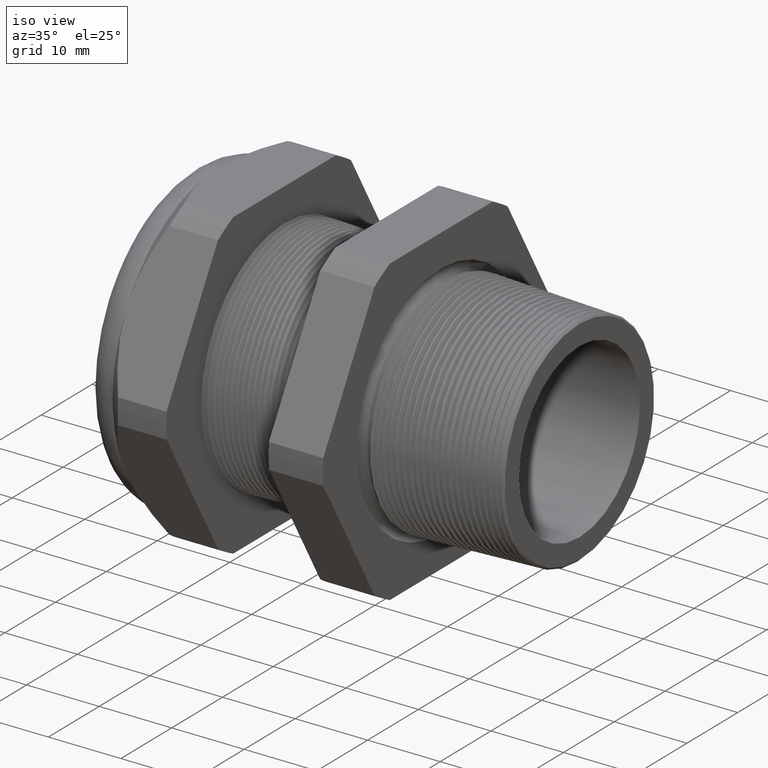
[diagram: clean part render]
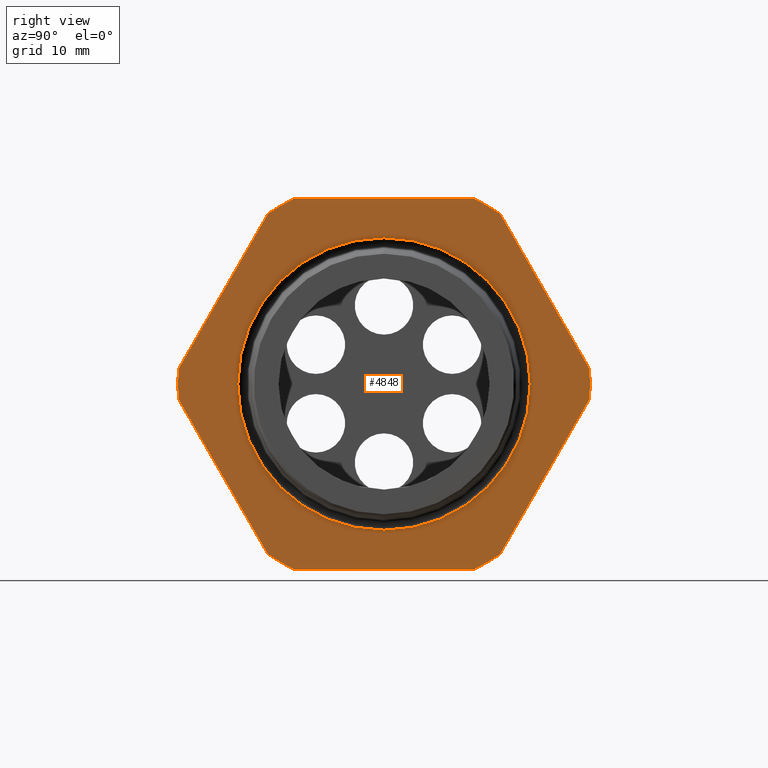
[diagram: tour spotlight — one face highlighted and labeled with its STEP entity id]
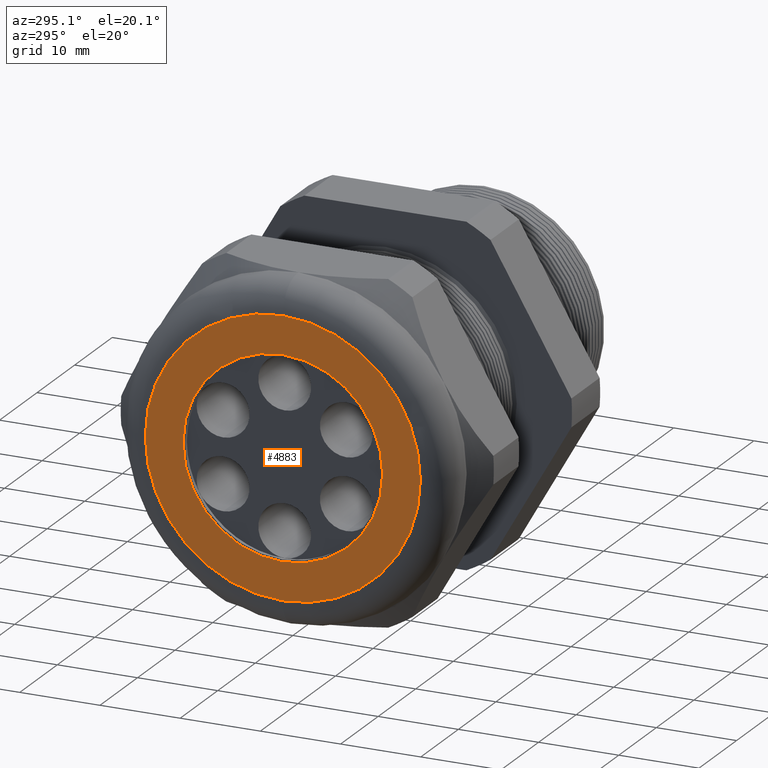
[diagram: tour spotlight — one face highlighted and labeled with its STEP entity id]
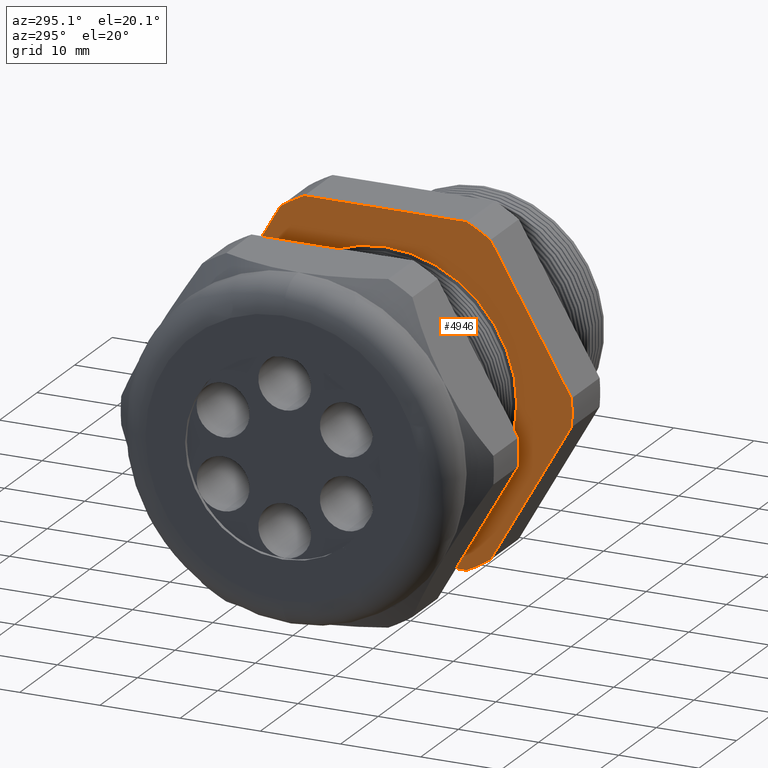
[diagram: tour spotlight — one face highlighted and labeled with its STEP entity id]
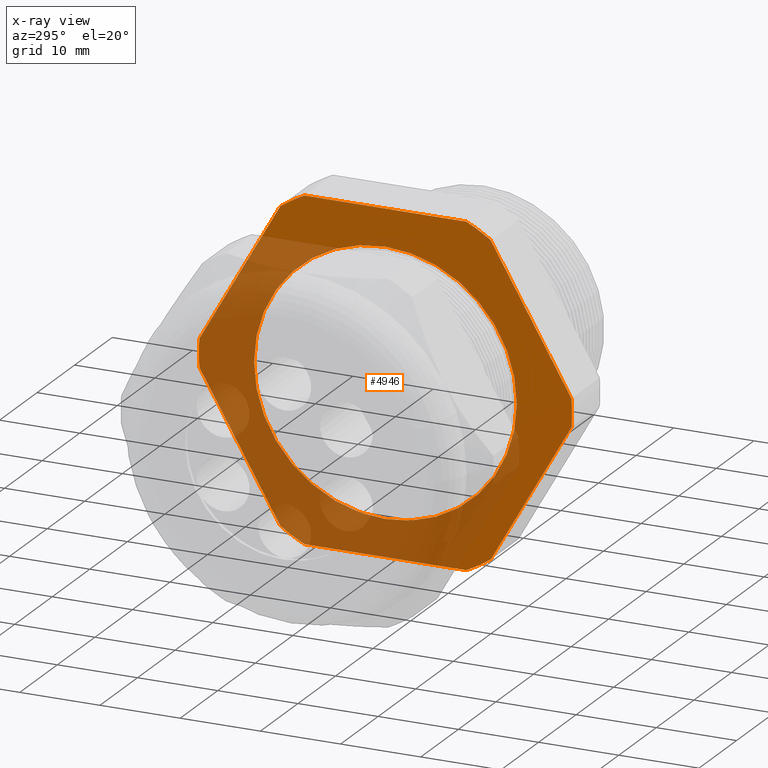
[diagram: x-ray of the same camera — body ghosted, this tour face saturated]
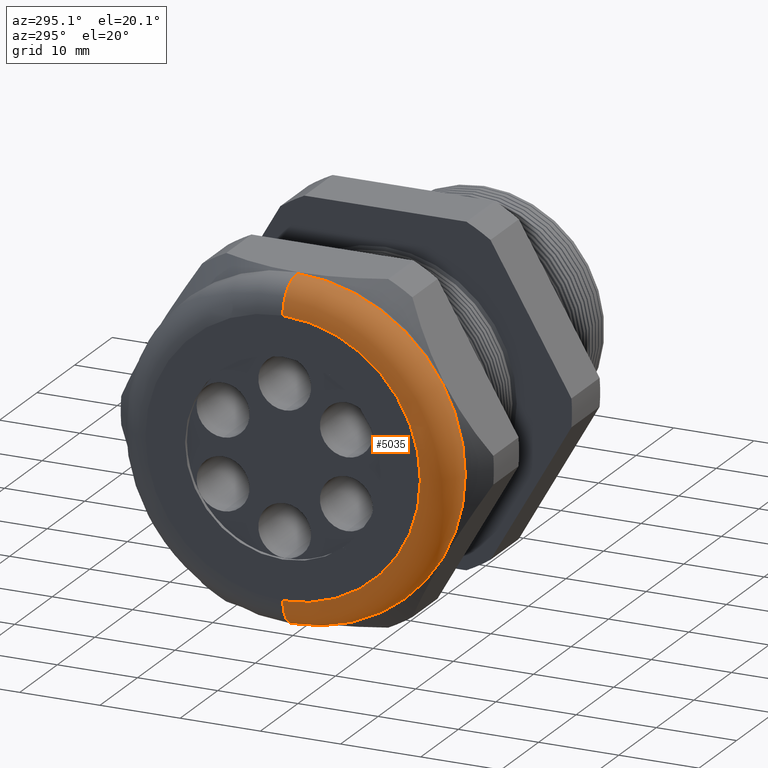
[diagram: tour spotlight — one face highlighted and labeled with its STEP entity id]
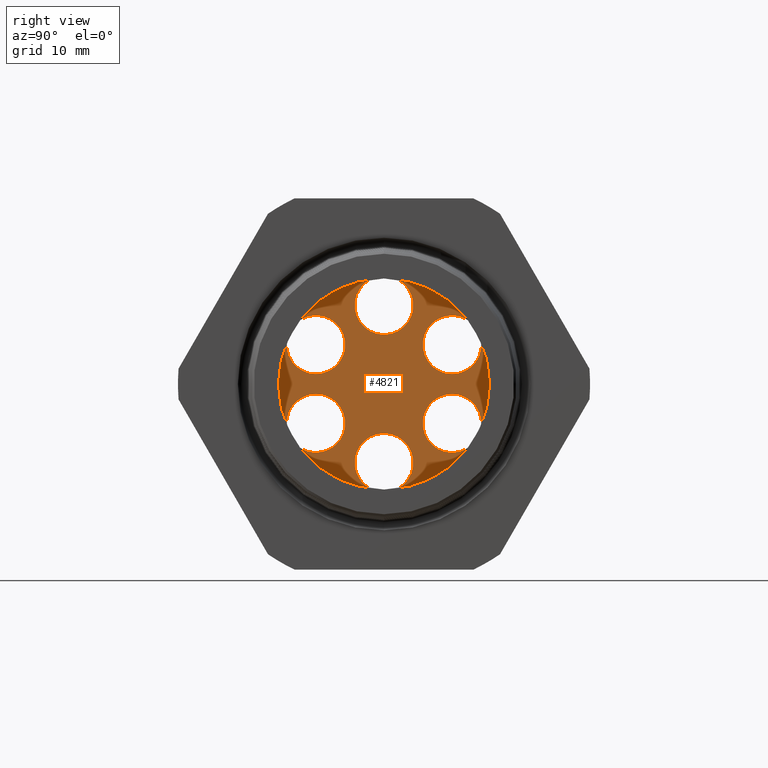
[diagram: tour spotlight — one face highlighted and labeled with its STEP entity id]
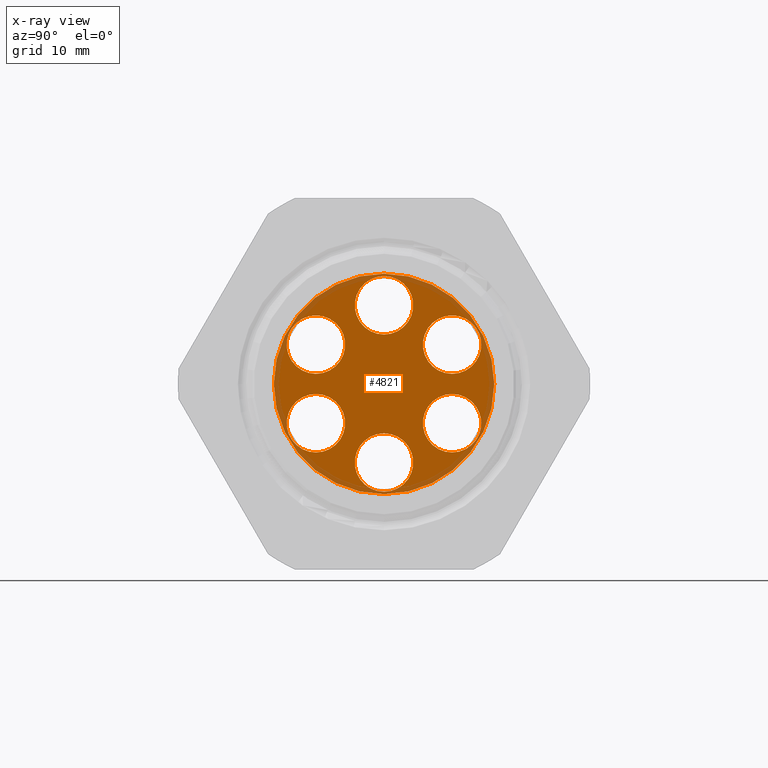
[diagram: x-ray of the same camera — body ghosted, this tour face saturated]
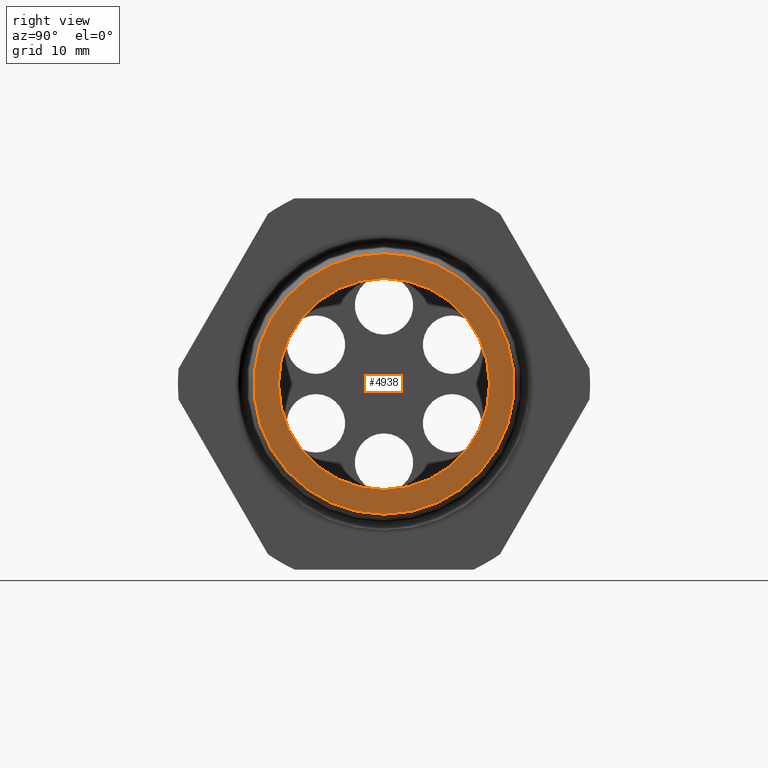
[diagram: tour spotlight — one face highlighted and labeled with its STEP entity id]
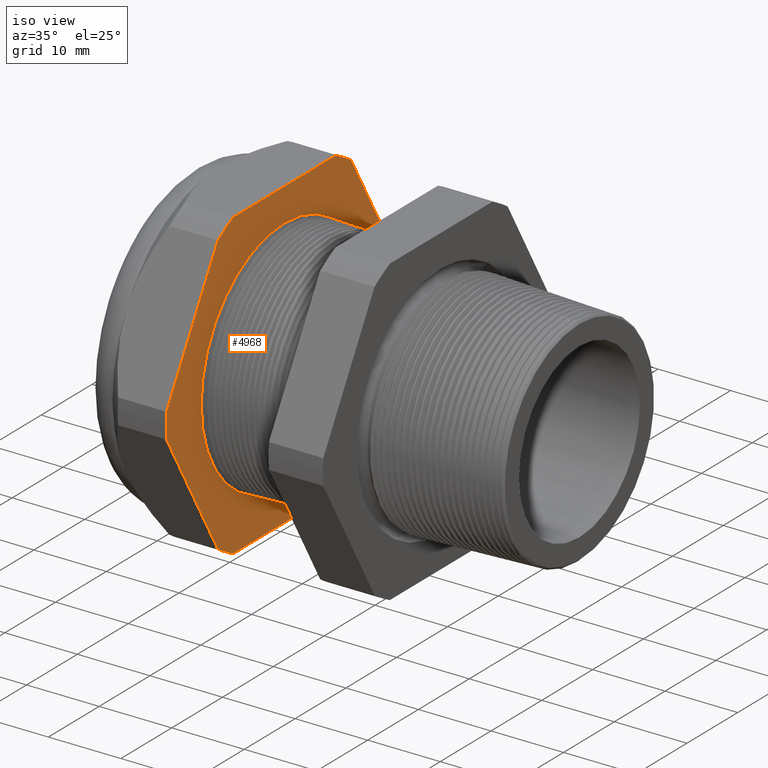
[diagram: tour spotlight — one face highlighted and labeled with its STEP entity id]
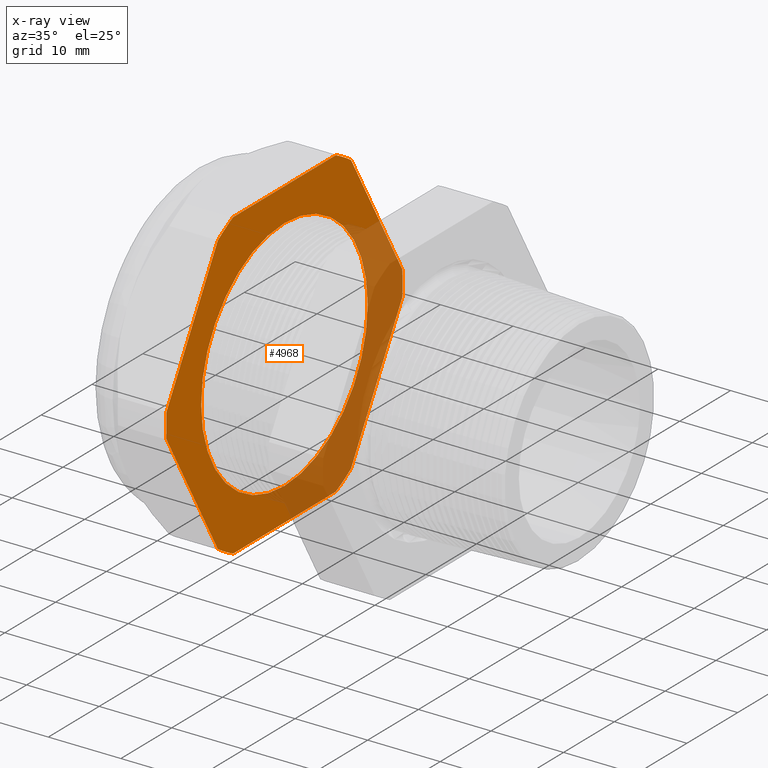
[diagram: x-ray of the same camera — body ghosted, this tour face saturated]
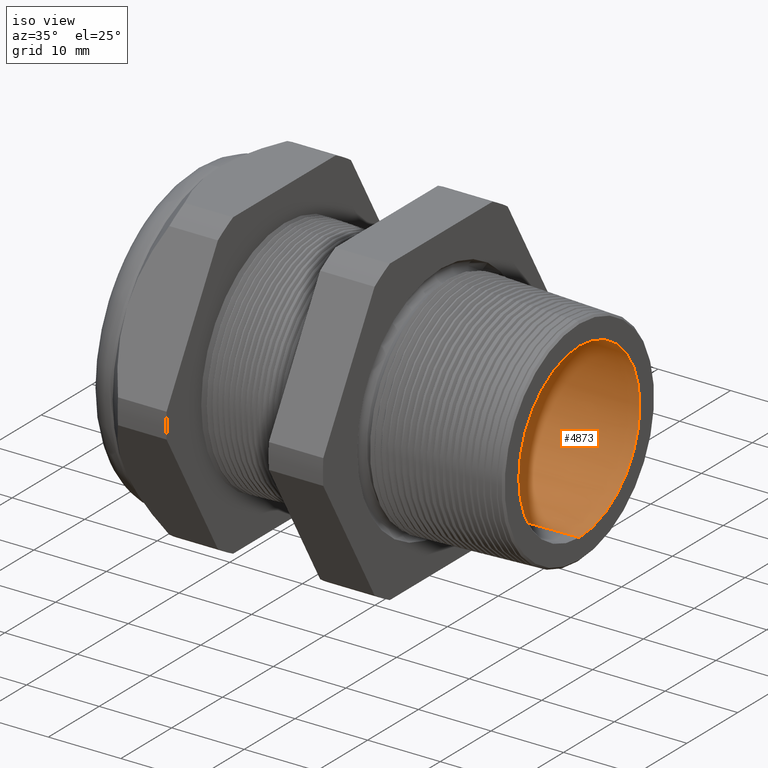
[diagram: tour spotlight — one face highlighted and labeled with its STEP entity id]
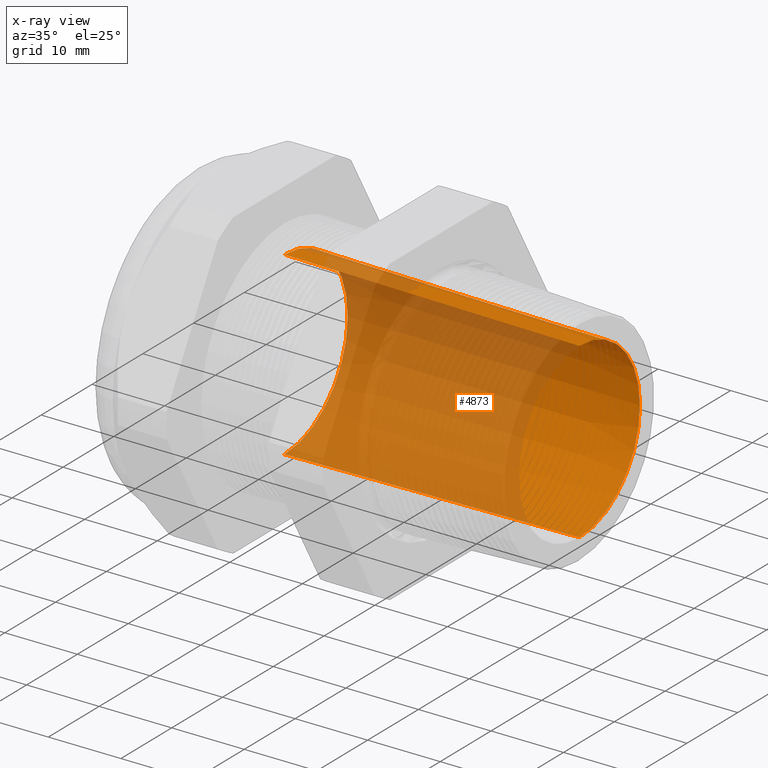
[diagram: x-ray of the same camera — body ghosted, this tour face saturated]
A machine part: a face-by-face anatomy tour. The part has 302 B-rep faces; the first image is the clean iso view, then the 8 largest visible faces are spotlighted one at a time (largest first), each with its STEP entity span.

Face 1 — right view, entity #4848. In plain terms, the highlighted planar face has unit normal (1, 0, 0).
Definition (entity closure, byte-faithful):
#822 = CIRCLE ( 'NONE', #889, 0.9157500000000000600 ) ;
#824 = DIRECTION ( 'NONE',  ( 0.0000000000000000000, 0.0000000000000000000, -1.000000000000000000 ) ) ;
#825 = DIRECTION ( 'NONE',  ( 1.000000000000000000, 0.0000000000000000000, 0.0000000000000000000 ) ) ;
#826 = CARTESIAN_POINT ( 'NONE',  ( -0.3100000000000000000, 0.0000000000000000000, 0.0000000000000000000 ) ) ;
#827 = AXIS2_PLACEMENT_3D ( 'NONE', #826, #825, #824 ) ;
#828 = CIRCLE ( 'NONE', #827, 0.9157500000000000600 ) ;
#830 = CARTESIAN_POINT ( 'NONE',  ( -0.3100000000000000000, 0.3974582525247150100, -0.8249999999999999600 ) ) ;
#858 = PLANE ( 'NONE',  #918 ) ;
#859 = FACE_OUTER_BOUND ( 'NONE', #4853, .T. ) ;
#860 = FACE_BOUND ( 'NONE', #4849, .T. ) ;
#862 = CARTESIAN_POINT ( 'NONE',  ( -0.3100000000000000000, -0.9132000843845193800, -0.06829105636982593700 ) ) ;
#863 = DIRECTION ( 'NONE',  ( 0.0000000000000000000, 0.0000000000000000000, -1.000000000000000000 ) ) ;
#865 = DIRECTION ( 'NONE',  ( 1.000000000000000000, 0.0000000000000000000, 0.0000000000000000000 ) ) ;
#866 = CARTESIAN_POINT ( 'NONE',  ( -0.3100000000000000000, 0.0000000000000000000, 0.0000000000000000000 ) ) ;
#867 = AXIS2_PLACEMENT_3D ( 'NONE', #866, #865, #863 ) ;
#868 = CIRCLE ( 'NONE', #867, 0.9157500000000000600 ) ;
#869 = CARTESIAN_POINT ( 'NONE',  ( -0.3100000000000000000, -0.9132000843845194900, 0.06829105636982570100 ) ) ;
#870 = DIRECTION ( 'NONE',  ( 0.0000000000000000000, -0.4999999999999997200, -0.8660254037844388200 ) ) ;
#871 = VECTOR ( 'NONE', #870, 39.37007874015748900 ) ;
#872 = CARTESIAN_POINT ( 'NONE',  ( -0.3100000000000000000, -0.3019709581221625100, 1.126970958122161400 ) ) ;
#873 = LINE ( 'NONE', #872, #871 ) ;
#874 = CARTESIAN_POINT ( 'NONE',  ( -0.3100000000000000000, -0.5157418318598044900, 0.7567089436301736000 ) ) ;
#875 = DIRECTION ( 'NONE',  ( 0.0000000000000000000, 0.0000000000000000000, -1.000000000000000000 ) ) ;
#876 = DIRECTION ( 'NONE',  ( 1.000000000000000000, 0.0000000000000000000, 0.0000000000000000000 ) ) ;
#877 = CARTESIAN_POINT ( 'NONE',  ( -0.3100000000000000000, 0.0000000000000000000, 0.0000000000000000000 ) ) ;
#878 = AXIS2_PLACEMENT_3D ( 'NONE', #877, #876, #875 ) ;
#879 = CIRCLE ( 'NONE', #878, 0.9157500000000000600 ) ;
#880 = CARTESIAN_POINT ( 'NONE',  ( -0.3100000000000000000, -0.3974582525247157800, 0.8249999999999995100 ) ) ;
#881 = DIRECTION ( 'NONE',  ( 0.0000000000000000000, -1.000000000000000000, 0.0000000000000000000 ) ) ;
#882 = VECTOR ( 'NONE', #881, 39.37007874015748100 ) ;
#883 = CARTESIAN_POINT ( 'NONE',  ( -0.3100000000000000000, 1.649999999999999900, 0.8249999999999998400 ) ) ;
#884 = LINE ( 'NONE', #883, #882 ) ;
#885 = CARTESIAN_POINT ( 'NONE',  ( -0.3100000000000000000, 0.3974582525247153400, 0.8249999999999998400 ) ) ;
#886 = DIRECTION ( 'NONE',  ( 0.0000000000000000000, 0.0000000000000000000, -1.000000000000000000 ) ) ;
#887 = DIRECTION ( 'NONE',  ( 1.000000000000000000, 0.0000000000000000000, 0.0000000000000000000 ) ) ;
#888 = CARTESIAN_POINT ( 'NONE',  ( -0.3100000000000000000, 0.0000000000000000000, 0.0000000000000000000 ) ) ;
#889 = AXIS2_PLACEMENT_3D ( 'NONE', #888, #887, #886 ) ;
#893 = CARTESIAN_POINT ( 'NONE',  ( -0.3100000000000000000, 0.5157418318598044900, 0.7567089436301736000 ) ) ;
#894 = DIRECTION ( 'NONE',  ( 0.0000000000000000000, -0.4999999999999998300, 0.8660254037844386000 ) ) ;
#895 = VECTOR ( 'NONE', #894, 39.37007874015748900 ) ;
#896 = CARTESIAN_POINT ( 'NONE',  ( -0.3100000000000000000, 1.126970958122161900, -0.3019709581221617400 ) ) ;
#897 = LINE ( 'NONE', #896, #895 ) ;
#898 = CARTESIAN_POINT ( 'NONE',  ( -0.3100000000000000000, 0.9132000843845192700, 0.06829105636982647800 ) ) ;
#899 = DIRECTION ( 'NONE',  ( 0.0000000000000000000, 0.0000000000000000000, -1.000000000000000000 ) ) ;
#900 = DIRECTION ( 'NONE',  ( 1.000000000000000000, 0.0000000000000000000, 0.0000000000000000000 ) ) ;
#901 = CARTESIAN_POINT ( 'NONE',  ( -0.3100000000000000000, 0.0000000000000000000, 0.0000000000000000000 ) ) ;
#902 = AXIS2_PLACEMENT_3D ( 'NONE', #901, #900, #899 ) ;
#903 = CIRCLE ( 'NONE', #902, 0.9157499999999999500 ) ;
#904 = CARTESIAN_POINT ( 'NONE',  ( -0.3100000000000000000, 0.9132000843845194900, -0.06829105636982671400 ) ) ;
#905 = CARTESIAN_POINT ( 'NONE',  ( -0.3100000000000000000, 0.5157418318598049300, -0.7567089436301733800 ) ) ;
#906 = DIRECTION ( 'NONE',  ( 0.0000000000000000000, 0.4999999999999998300, 0.8660254037844386000 ) ) ;
#907 = VECTOR ( 'NONE', #906, 39.37007874015748900 ) ;
#908 = CARTESIAN_POINT ( 'NONE',  ( -0.3100000000000000000, 1.126970958122162100, 0.3019709581221616800 ) ) ;
#909 = LINE ( 'NONE', #908, #907 ) ;
#910 = DIRECTION ( 'NONE',  ( 0.0000000000000000000, 0.0000000000000000000, -1.000000000000000000 ) ) ;
#911 = DIRECTION ( 'NONE',  ( 1.000000000000000000, 0.0000000000000000000, 0.0000000000000000000 ) ) ;
#912 = CARTESIAN_POINT ( 'NONE',  ( -0.3100000000000000000, 0.0000000000000000000, 0.0000000000000000000 ) ) ;
#913 = AXIS2_PLACEMENT_3D ( 'NONE', #912, #911, #910 ) ;
#914 = CIRCLE ( 'NONE', #913, 0.6499473634158414700 ) ;
#915 = DIRECTION ( 'NONE',  ( 0.0000000000000000000, 0.0000000000000000000, -1.000000000000000000 ) ) ;
#916 = DIRECTION ( 'NONE',  ( 1.000000000000000000, 0.0000000000000000000, 0.0000000000000000000 ) ) ;
#917 = CARTESIAN_POINT ( 'NONE',  ( -0.3100000000000000000, 1.649999999999999900, 0.0000000000000000000 ) ) ;
#918 = AXIS2_PLACEMENT_3D ( 'NONE', #917, #916, #915 ) ;
#984 = DIRECTION ( 'NONE',  ( 0.0000000000000000000, 1.000000000000000000, 0.0000000000000000000 ) ) ;
#985 = VECTOR ( 'NONE', #984, 39.37007874015748100 ) ;
#986 = CARTESIAN_POINT ( 'NONE',  ( -0.3100000000000000000, 1.649999999999999900, -0.8250000000000000700 ) ) ;
#987 = LINE ( 'NONE', #986, #985 ) ;
#988 = CARTESIAN_POINT ( 'NONE',  ( -0.3100000000000000000, -0.3974582525247148400, -0.8250000000000000700 ) ) ;
#989 = DIRECTION ( 'NONE',  ( 0.0000000000000000000, 0.0000000000000000000, -1.000000000000000000 ) ) ;
#990 = DIRECTION ( 'NONE',  ( 1.000000000000000000, 0.0000000000000000000, 0.0000000000000000000 ) ) ;
#991 = CARTESIAN_POINT ( 'NONE',  ( -0.3100000000000000000, 0.0000000000000000000, 0.0000000000000000000 ) ) ;
#992 = AXIS2_PLACEMENT_3D ( 'NONE', #991, #990, #989 ) ;
#993 = CIRCLE ( 'NONE', #992, 0.9157500000000000600 ) ;
#994 = CARTESIAN_POINT ( 'NONE',  ( -0.3100000000000000000, -0.5157418318598037100, -0.7567089436301741600 ) ) ;
#995 = DIRECTION ( 'NONE',  ( 0.0000000000000000000, 0.5000000000000001100, -0.8660254037844384900 ) ) ;
#996 = VECTOR ( 'NONE', #995, 39.37007874015748900 ) ;
#997 = CARTESIAN_POINT ( 'NONE',  ( -0.3100000000000000000, -0.3019709581221617400, -1.126970958122162300 ) ) ;
#998 = LINE ( 'NONE', #997, #996 ) ;
#3967 = CARTESIAN_POINT ( 'NONE',  ( -0.3100000000000000000, 0.0000000000000000000, -0.6499473634158414700 ) ) ;
#3989 = DIRECTION ( 'NONE',  ( 0.0000000000000000000, 0.0000000000000000000, -1.000000000000000000 ) ) ;
#3990 = DIRECTION ( 'NONE',  ( 1.000000000000000000, 0.0000000000000000000, 0.0000000000000000000 ) ) ;
#3991 = CARTESIAN_POINT ( 'NONE',  ( -0.3100000000000000000, 0.0000000000000000000, 0.0000000000000000000 ) ) ;
#3992 = AXIS2_PLACEMENT_3D ( 'NONE', #3991, #3990, #3989 ) ;
#3993 = CIRCLE ( 'NONE', #3992, 0.6499473634158414700 ) ;
#4054 = CARTESIAN_POINT ( 'NONE',  ( -0.3100000000000000000, 7.959559582214716800E-017, 0.6499473634158414700 ) ) ;
#4827 = VERTEX_POINT ( 'NONE', #830 ) ;
#4828 = ORIENTED_EDGE ( 'NONE', *, *, #4829, .T. ) ;
#4829 = EDGE_CURVE ( 'NONE', #4827, #4856, #828, .T. ) ;
#4833 = ORIENTED_EDGE ( 'NONE', *, *, #4834, .T. ) ;
#4834 = EDGE_CURVE ( 'NONE', #4863, #4835, #822, .T. ) ;
#4835 = VERTEX_POINT ( 'NONE', #885 ) ;
#4836 = ORIENTED_EDGE ( 'NONE', *, *, #4837, .T. ) ;
#4837 = EDGE_CURVE ( 'NONE', #4835, #4838, #884, .T. ) ;
#4838 = VERTEX_POINT ( 'NONE', #880 ) ;
#4839 = ORIENTED_EDGE ( 'NONE', *, *, #4840, .T. ) ;
#4840 = EDGE_CURVE ( 'NONE', #4838, #4841, #879, .T. ) ;
#4841 = VERTEX_POINT ( 'NONE', #874 ) ;
#4842 = ORIENTED_EDGE ( 'NONE', *, *, #4843, .T. ) ;
#4843 = EDGE_CURVE ( 'NONE', #4841, #4844, #873, .T. ) ;
#4844 = VERTEX_POINT ( 'NONE', #869 ) ;
#4845 = ORIENTED_EDGE ( 'NONE', *, *, #4846, .T. ) ;
#4846 = EDGE_CURVE ( 'NONE', #4844, #4847, #868, .T. ) ;
#4847 = VERTEX_POINT ( 'NONE', #862 ) ;
#4848 = ADVANCED_FACE ( 'NONE', ( #860, #859 ), #858, .T. ) ;
#4849 = EDGE_LOOP ( 'NONE', ( #4850, #4852 ) ) ;
#4850 = ORIENTED_EDGE ( 'NONE', *, *, #4851, .F. ) ;
#4851 = EDGE_CURVE ( 'NONE', #7840, #7897, #914, .T. ) ;
#4852 = ORIENTED_EDGE ( 'NONE', *, *, #7867, .F. ) ;
#4853 = EDGE_LOOP ( 'NONE', ( #4854, #4858, #4861, #4833, #4836, #4839, #4842, #4845, #4902, #4905, #4908, #4828 ) ) ;
#4854 = ORIENTED_EDGE ( 'NONE', *, *, #4855, .T. ) ;
#4855 = EDGE_CURVE ( 'NONE', #4856, #4857, #909, .T. ) ;
#4856 = VERTEX_POINT ( 'NONE', #905 ) ;
#4857 = VERTEX_POINT ( 'NONE', #904 ) ;
#4858 = ORIENTED_EDGE ( 'NONE', *, *, #4859, .T. ) ;
#4859 = EDGE_CURVE ( 'NONE', #4857, #4860, #903, .T. ) ;
#4860 = VERTEX_POINT ( 'NONE', #898 ) ;
#4861 = ORIENTED_EDGE ( 'NONE', *, *, #4862, .T. ) ;
#4862 = EDGE_CURVE ( 'NONE', #4860, #4863, #897, .T. ) ;
#4863 = VERTEX_POINT ( 'NONE', #893 ) ;
#4902 = ORIENTED_EDGE ( 'NONE', *, *, #4903, .T. ) ;
#4903 = EDGE_CURVE ( 'NONE', #4847, #4904, #998, .T. ) ;
#4904 = VERTEX_POINT ( 'NONE', #994 ) ;
#4905 = ORIENTED_EDGE ( 'NONE', *, *, #4906, .T. ) ;
#4906 = EDGE_CURVE ( 'NONE', #4904, #4907, #993, .T. ) ;
#4907 = VERTEX_POINT ( 'NONE', #988 ) ;
#4908 = ORIENTED_EDGE ( 'NONE', *, *, #4909, .T. ) ;
#4909 = EDGE_CURVE ( 'NONE', #4907, #4827, #987, .T. ) ;
#7840 = VERTEX_POINT ( 'NONE', #3967 ) ;
#7867 = EDGE_CURVE ( 'NONE', #7897, #7840, #3993, .T. ) ;
#7897 = VERTEX_POINT ( 'NONE', #4054 ) ;

Face 2 — auxiliary view, entity #4883. In plain terms, the highlighted planar face has unit normal (-1, 0, 0).
Definition (entity closure, byte-faithful):
#957 = DIRECTION ( 'NONE',  ( 0.0000000000000000000, 0.0000000000000000000, -1.000000000000000000 ) ) ;
#958 = DIRECTION ( 'NONE',  ( 1.000000000000000000, 0.0000000000000000000, 0.0000000000000000000 ) ) ;
#959 = CARTESIAN_POINT ( 'NONE',  ( -1.680000000000000200, 0.0000000000000000000, 0.0000000000000000000 ) ) ;
#960 = AXIS2_PLACEMENT_3D ( 'NONE', #959, #958, #957 ) ;
#961 = CIRCLE ( 'NONE', #960, 0.4899999999999999900 ) ;
#962 = DIRECTION ( 'NONE',  ( 0.0000000000000000000, 0.0000000000000000000, 1.000000000000000000 ) ) ;
#963 = DIRECTION ( 'NONE',  ( -1.000000000000000000, 0.0000000000000000000, 0.0000000000000000000 ) ) ;
#964 = CARTESIAN_POINT ( 'NONE',  ( -1.680000000000000200, 0.0000000000000000000, 0.0000000000000000000 ) ) ;
#965 = AXIS2_PLACEMENT_3D ( 'NONE', #964, #963, #962 ) ;
#966 = CIRCLE ( 'NONE', #965, 0.6749999999999997100 ) ;
#967 = DIRECTION ( 'NONE',  ( 0.0000000000000000000, 0.0000000000000000000, 1.000000000000000000 ) ) ;
#968 = DIRECTION ( 'NONE',  ( -1.000000000000000000, 0.0000000000000000000, 0.0000000000000000000 ) ) ;
#969 = CARTESIAN_POINT ( 'NONE',  ( -1.680000000000000200, 0.8249999999999998400, 0.0000000000000000000 ) ) ;
#970 = AXIS2_PLACEMENT_3D ( 'NONE', #969, #968, #967 ) ;
#971 = PLANE ( 'NONE',  #970 ) ;
#972 = FACE_BOUND ( 'NONE', #4888, .T. ) ;
#973 = FACE_OUTER_BOUND ( 'NONE', #4884, .T. ) ;
#2888 = CARTESIAN_POINT ( 'NONE',  ( -1.680000000000000200, 0.0000000000000000000, 0.6749999999999997100 ) ) ;
#2971 = DIRECTION ( 'NONE',  ( 0.0000000000000000000, 0.0000000000000000000, 1.000000000000000000 ) ) ;
#2972 = DIRECTION ( 'NONE',  ( -1.000000000000000000, 0.0000000000000000000, 0.0000000000000000000 ) ) ;
#2973 = CARTESIAN_POINT ( 'NONE',  ( -1.680000000000000200, 0.0000000000000000000, 0.0000000000000000000 ) ) ;
#2974 = AXIS2_PLACEMENT_3D ( 'NONE', #2973, #2972, #2971 ) ;
#2975 = CIRCLE ( 'NONE', #2974, 0.6749999999999997100 ) ;
#2976 = CARTESIAN_POINT ( 'NONE',  ( -1.680000000000000200, 9.184850993605146000E-017, -0.6749999999999997100 ) ) ;
#4478 = VERTEX_POINT ( 'NONE', #6812 ) ;
#4482 = VERTEX_POINT ( 'NONE', #6803 ) ;
#4485 = EDGE_CURVE ( 'NONE', #4482, #4478, #6801, .T. ) ;
#4883 = ADVANCED_FACE ( 'NONE', ( #973, #972 ), #971, .T. ) ;
#4884 = EDGE_LOOP ( 'NONE', ( #4885, #4886 ) ) ;
#4885 = ORIENTED_EDGE ( 'NONE', *, *, #7327, .T. ) ;
#4886 = ORIENTED_EDGE ( 'NONE', *, *, #4887, .T. ) ;
#4887 = EDGE_CURVE ( 'NONE', #7324, #7290, #966, .T. ) ;
#4888 = EDGE_LOOP ( 'NONE', ( #4889, #4948 ) ) ;
#4889 = ORIENTED_EDGE ( 'NONE', *, *, #4890, .T. ) ;
#4890 = EDGE_CURVE ( 'NONE', #4478, #4482, #961, .T. ) ;
#4948 = ORIENTED_EDGE ( 'NONE', *, *, #4485, .T. ) ;
#6797 = DIRECTION ( 'NONE',  ( 0.0000000000000000000, 0.0000000000000000000, -1.000000000000000000 ) ) ;
#6798 = DIRECTION ( 'NONE',  ( 1.000000000000000000, 0.0000000000000000000, 0.0000000000000000000 ) ) ;
#6799 = CARTESIAN_POINT ( 'NONE',  ( -1.680000000000000200, 0.0000000000000000000, 0.0000000000000000000 ) ) ;
#6800 = AXIS2_PLACEMENT_3D ( 'NONE', #6799, #6798, #6797 ) ;
#6801 = CIRCLE ( 'NONE', #6800, 0.4899999999999999900 ) ;
#6803 = CARTESIAN_POINT ( 'NONE',  ( -1.680000000000000200, 6.000769315822029800E-017, 0.4899999999999999900 ) ) ;
#6812 = CARTESIAN_POINT ( 'NONE',  ( -1.680000000000000200, 0.0000000000000000000, -0.4899999999999999900 ) ) ;
#7290 = VERTEX_POINT ( 'NONE', #2888 ) ;
#7324 = VERTEX_POINT ( 'NONE', #2976 ) ;
#7327 = EDGE_CURVE ( 'NONE', #7290, #7324, #2975, .T. ) ;

Face 3 — auxiliary view, entity #4946. An x-ray twin of the same camera follows (body ghosted, this face saturated) — the face is partly hidden behind the body. In plain terms, the highlighted planar face has unit normal (-1, 0, 0).
Definition (entity closure, byte-faithful):
#983 = CARTESIAN_POINT ( 'NONE',  ( -0.6052755905511810800, -0.3974582525247148400, -0.8250000000000000700 ) ) ;
#1015 = CIRCLE ( 'NONE', #1081, 0.9157499999999999500 ) ;
#1016 = CARTESIAN_POINT ( 'NONE',  ( -0.6052755905511810800, 0.9132000843845192700, 0.06829105636982647800 ) ) ;
#1017 = CARTESIAN_POINT ( 'NONE',  ( -0.6052755905511810800, 0.5157418318598044900, 0.7567089436301736000 ) ) ;
#1018 = DIRECTION ( 'NONE',  ( 0.0000000000000000000, 0.4999999999999998300, -0.8660254037844386000 ) ) ;
#1019 = VECTOR ( 'NONE', #1018, 39.37007874015748900 ) ;
#1020 = CARTESIAN_POINT ( 'NONE',  ( -0.6052755905511809600, 1.126970958122161900, -0.3019709581221617400 ) ) ;
#1021 = LINE ( 'NONE', #1020, #1019 ) ;
#1022 = DIRECTION ( 'NONE',  ( 0.0000000000000000000, 0.0000000000000000000, 1.000000000000000000 ) ) ;
#1023 = DIRECTION ( 'NONE',  ( -1.000000000000000000, 0.0000000000000000000, 0.0000000000000000000 ) ) ;
#1024 = CARTESIAN_POINT ( 'NONE',  ( -0.6052755905511809600, 0.0000000000000000000, 0.0000000000000000000 ) ) ;
#1025 = AXIS2_PLACEMENT_3D ( 'NONE', #1024, #1023, #1022 ) ;
#1026 = CIRCLE ( 'NONE', #1025, 0.6444748136241791300 ) ;
#1027 = CARTESIAN_POINT ( 'NONE',  ( -0.6052755905511810800, -0.9132000843845194900, 0.06829105636982570100 ) ) ;
#1028 = DIRECTION ( 'NONE',  ( 0.0000000000000000000, 0.0000000000000000000, 1.000000000000000000 ) ) ;
#1029 = DIRECTION ( 'NONE',  ( -1.000000000000000000, 0.0000000000000000000, 0.0000000000000000000 ) ) ;
#1030 = CARTESIAN_POINT ( 'NONE',  ( -0.6052755905511810800, 0.0000000000000000000, 0.0000000000000000000 ) ) ;
#1031 = AXIS2_PLACEMENT_3D ( 'NONE', #1030, #1029, #1028 ) ;
#1032 = CIRCLE ( 'NONE', #1031, 0.9157500000000000600 ) ;
#1033 = CARTESIAN_POINT ( 'NONE',  ( -0.6052755905511810800, -0.9132000843845193800, -0.06829105636982593700 ) ) ;
#1034 = DIRECTION ( 'NONE',  ( 0.0000000000000000000, -0.5000000000000001100, 0.8660254037844384900 ) ) ;
#1035 = VECTOR ( 'NONE', #1034, 39.37007874015748900 ) ;
#1036 = CARTESIAN_POINT ( 'NONE',  ( -0.6052755905511809600, -0.3019709581221617400, -1.126970958122162300 ) ) ;
#1037 = LINE ( 'NONE', #1036, #1035 ) ;
#1038 = CARTESIAN_POINT ( 'NONE',  ( -0.6052755905511810800, -0.5157418318598037100, -0.7567089436301741600 ) ) ;
#1039 = DIRECTION ( 'NONE',  ( 0.0000000000000000000, 0.0000000000000000000, 1.000000000000000000 ) ) ;
#1040 = DIRECTION ( 'NONE',  ( -1.000000000000000000, 0.0000000000000000000, 0.0000000000000000000 ) ) ;
#1041 = CARTESIAN_POINT ( 'NONE',  ( -0.6052755905511810800, 0.0000000000000000000, 0.0000000000000000000 ) ) ;
#1042 = AXIS2_PLACEMENT_3D ( 'NONE', #1041, #1040, #1039 ) ;
#1043 = CIRCLE ( 'NONE', #1042, 0.9157500000000000600 ) ;
#1047 = DIRECTION ( 'NONE',  ( 0.0000000000000000000, 0.0000000000000000000, 1.000000000000000000 ) ) ;
#1048 = DIRECTION ( 'NONE',  ( -1.000000000000000000, 0.0000000000000000000, 0.0000000000000000000 ) ) ;
#1049 = CARTESIAN_POINT ( 'NONE',  ( -0.6052755905511809600, 1.649999999999999900, 0.0000000000000000000 ) ) ;
#1050 = AXIS2_PLACEMENT_3D ( 'NONE', #1049, #1048, #1047 ) ;
#1051 = PLANE ( 'NONE',  #1050 ) ;
#1052 = FACE_OUTER_BOUND ( 'NONE', #4923, .T. ) ;
#1053 = FACE_BOUND ( 'NONE', #4947, .T. ) ;
#1072 = CARTESIAN_POINT ( 'NONE',  ( -0.6052755905511809600, 0.5157418318598050400, -0.7567089436301733800 ) ) ;
#1073 = DIRECTION ( 'NONE',  ( 0.0000000000000000000, -0.4999999999999998300, -0.8660254037844386000 ) ) ;
#1074 = VECTOR ( 'NONE', #1073, 39.37007874015748900 ) ;
#1075 = CARTESIAN_POINT ( 'NONE',  ( -0.6052755905511809600, 1.126970958122162100, 0.3019709581221616800 ) ) ;
#1076 = LINE ( 'NONE', #1075, #1074 ) ;
#1077 = CARTESIAN_POINT ( 'NONE',  ( -0.6052755905511810800, 0.9132000843845193800, -0.06829105636982670000 ) ) ;
#1078 = DIRECTION ( 'NONE',  ( 0.0000000000000000000, 0.0000000000000000000, 1.000000000000000000 ) ) ;
#1079 = DIRECTION ( 'NONE',  ( -1.000000000000000000, 0.0000000000000000000, 0.0000000000000000000 ) ) ;
#1080 = CARTESIAN_POINT ( 'NONE',  ( -0.6052755905511810800, 0.0000000000000000000, 0.0000000000000000000 ) ) ;
#1081 = AXIS2_PLACEMENT_3D ( 'NONE', #1080, #1079, #1078 ) ;
#1082 = DIRECTION ( 'NONE',  ( 0.0000000000000000000, 0.4999999999999997200, 0.8660254037844388200 ) ) ;
#1083 = VECTOR ( 'NONE', #1082, 39.37007874015748900 ) ;
#1084 = CARTESIAN_POINT ( 'NONE',  ( -0.6052755905511809600, -0.3019709581221625100, 1.126970958122161400 ) ) ;
#1085 = LINE ( 'NONE', #1084, #1083 ) ;
#1112 = CARTESIAN_POINT ( 'NONE',  ( -0.6052755905511809600, 1.649999999999999900, -0.8250000000000000700 ) ) ;
#1113 = LINE ( 'NONE', #1112, #1175 ) ;
#1114 = CARTESIAN_POINT ( 'NONE',  ( -0.6052755905511810800, 0.3974582525247150100, -0.8249999999999999600 ) ) ;
#1115 = DIRECTION ( 'NONE',  ( 0.0000000000000000000, 0.0000000000000000000, 1.000000000000000000 ) ) ;
#1116 = DIRECTION ( 'NONE',  ( -1.000000000000000000, 0.0000000000000000000, 0.0000000000000000000 ) ) ;
#1117 = AXIS2_PLACEMENT_3D ( 'NONE', #1123, #1116, #1115 ) ;
#1118 = CIRCLE ( 'NONE', #1117, 0.9157500000000000600 ) ;
#1123 = CARTESIAN_POINT ( 'NONE',  ( -0.6052755905511810800, 0.0000000000000000000, 0.0000000000000000000 ) ) ;
#1125 = DIRECTION ( 'NONE',  ( 0.0000000000000000000, 0.0000000000000000000, 1.000000000000000000 ) ) ;
#1126 = DIRECTION ( 'NONE',  ( -1.000000000000000000, 0.0000000000000000000, 0.0000000000000000000 ) ) ;
#1127 = CARTESIAN_POINT ( 'NONE',  ( -0.6052755905511810800, 0.0000000000000000000, 0.0000000000000000000 ) ) ;
#1128 = AXIS2_PLACEMENT_3D ( 'NONE', #1127, #1126, #1125 ) ;
#1129 = CIRCLE ( 'NONE', #1128, 0.9157500000000000600 ) ;
#1131 = CARTESIAN_POINT ( 'NONE',  ( -0.6052755905511810800, 0.3974582525247153400, 0.8249999999999998400 ) ) ;
#1132 = DIRECTION ( 'NONE',  ( 0.0000000000000000000, 1.000000000000000000, 0.0000000000000000000 ) ) ;
#1133 = VECTOR ( 'NONE', #1132, 39.37007874015748100 ) ;
#1134 = CARTESIAN_POINT ( 'NONE',  ( -0.6052755905511809600, 1.649999999999999900, 0.8249999999999998400 ) ) ;
#1135 = LINE ( 'NONE', #1134, #1133 ) ;
#1136 = CARTESIAN_POINT ( 'NONE',  ( -0.6052755905511810800, -0.3974582525247157800, 0.8249999999999995100 ) ) ;
#1137 = DIRECTION ( 'NONE',  ( 0.0000000000000000000, 0.0000000000000000000, 1.000000000000000000 ) ) ;
#1138 = DIRECTION ( 'NONE',  ( -1.000000000000000000, 0.0000000000000000000, 0.0000000000000000000 ) ) ;
#1139 = CARTESIAN_POINT ( 'NONE',  ( -0.6052755905511810800, 0.0000000000000000000, 0.0000000000000000000 ) ) ;
#1140 = AXIS2_PLACEMENT_3D ( 'NONE', #1139, #1138, #1137 ) ;
#1141 = CIRCLE ( 'NONE', #1140, 0.9157500000000000600 ) ;
#1142 = CARTESIAN_POINT ( 'NONE',  ( -0.6052755905511810800, -0.5157418318598044900, 0.7567089436301736000 ) ) ;
#1174 = DIRECTION ( 'NONE',  ( 0.0000000000000000000, -1.000000000000000000, 0.0000000000000000000 ) ) ;
#1175 = VECTOR ( 'NONE', #1174, 39.37007874015748100 ) ;
#3387 = CARTESIAN_POINT ( 'NONE',  ( -0.6052755905511809600, 0.0000000000000000000, 0.6444748136241792400 ) ) ;
#3418 = DIRECTION ( 'NONE',  ( 0.0000000000000000000, 0.0000000000000000000, 1.000000000000000000 ) ) ;
#3419 = DIRECTION ( 'NONE',  ( -1.000000000000000000, 0.0000000000000000000, 0.0000000000000000000 ) ) ;
#3420 = CARTESIAN_POINT ( 'NONE',  ( -0.6052755905511809600, 0.0000000000000000000, 0.0000000000000000000 ) ) ;
#3421 = AXIS2_PLACEMENT_3D ( 'NONE', #3420, #3419, #3418 ) ;
#3422 = CIRCLE ( 'NONE', #3421, 0.6444748136241791300 ) ;
#3423 = CARTESIAN_POINT ( 'NONE',  ( -0.6052755905511809600, 7.892540176359381800E-017, -0.6444748136241792400 ) ) ;
#4910 = VERTEX_POINT ( 'NONE', #983 ) ;
#4911 = ORIENTED_EDGE ( 'NONE', *, *, #4912, .T. ) ;
#4912 = EDGE_CURVE ( 'NONE', #4910, #4913, #1043, .T. ) ;
#4913 = VERTEX_POINT ( 'NONE', #1038 ) ;
#4914 = ORIENTED_EDGE ( 'NONE', *, *, #4915, .T. ) ;
#4915 = EDGE_CURVE ( 'NONE', #4913, #4916, #1037, .T. ) ;
#4916 = VERTEX_POINT ( 'NONE', #1033 ) ;
#4917 = ORIENTED_EDGE ( 'NONE', *, *, #4918, .T. ) ;
#4918 = EDGE_CURVE ( 'NONE', #4916, #4919, #1032, .T. ) ;
#4919 = VERTEX_POINT ( 'NONE', #1027 ) ;
#4920 = ORIENTED_EDGE ( 'NONE', *, *, #4921, .F. ) ;
#4921 = EDGE_CURVE ( 'NONE', #7547, #7562, #1026, .T. ) ;
#4922 = ORIENTED_EDGE ( 'NONE', *, *, #7564, .F. ) ;
#4923 = EDGE_LOOP ( 'NONE', ( #4924, #4928, #4931, #4990, #4993, #4911, #4914, #4917, #4976, #4979, #4982, #4985 ) ) ;
#4924 = ORIENTED_EDGE ( 'NONE', *, *, #4925, .T. ) ;
#4925 = EDGE_CURVE ( 'NONE', #4926, #4927, #1021, .T. ) ;
#4926 = VERTEX_POINT ( 'NONE', #1017 ) ;
#4927 = VERTEX_POINT ( 'NONE', #1016 ) ;
#4928 = ORIENTED_EDGE ( 'NONE', *, *, #4929, .T. ) ;
#4929 = EDGE_CURVE ( 'NONE', #4927, #4930, #1015, .T. ) ;
#4930 = VERTEX_POINT ( 'NONE', #1077 ) ;
#4931 = ORIENTED_EDGE ( 'NONE', *, *, #4932, .T. ) ;
#4932 = EDGE_CURVE ( 'NONE', #4930, #4933, #1076, .T. ) ;
#4933 = VERTEX_POINT ( 'NONE', #1072 ) ;
#4946 = ADVANCED_FACE ( 'NONE', ( #1053, #1052 ), #1051, .T. ) ;
#4947 = EDGE_LOOP ( 'NONE', ( #4920, #4922 ) ) ;
#4976 = ORIENTED_EDGE ( 'NONE', *, *, #4977, .T. ) ;
#4977 = EDGE_CURVE ( 'NONE', #4919, #4978, #1085, .T. ) ;
#4978 = VERTEX_POINT ( 'NONE', #1142 ) ;
#4979 = ORIENTED_EDGE ( 'NONE', *, *, #4980, .T. ) ;
#4980 = EDGE_CURVE ( 'NONE', #4978, #4981, #1141, .T. ) ;
#4981 = VERTEX_POINT ( 'NONE', #1136 ) ;
#4982 = ORIENTED_EDGE ( 'NONE', *, *, #4983, .T. ) ;
#4983 = EDGE_CURVE ( 'NONE', #4981, #4984, #1135, .T. ) ;
#4984 = VERTEX_POINT ( 'NONE', #1131 ) ;
#4985 = ORIENTED_EDGE ( 'NONE', *, *, #4986, .T. ) ;
#4986 = EDGE_CURVE ( 'NONE', #4984, #4926, #1129, .T. ) ;
#4990 = ORIENTED_EDGE ( 'NONE', *, *, #4991, .T. ) ;
#4991 = EDGE_CURVE ( 'NONE', #4933, #4992, #1118, .T. ) ;
#4992 = VERTEX_POINT ( 'NONE', #1114 ) ;
#4993 = ORIENTED_EDGE ( 'NONE', *, *, #4994, .T. ) ;
#4994 = EDGE_CURVE ( 'NONE', #4992, #4910, #1113, .T. ) ;
#7547 = VERTEX_POINT ( 'NONE', #3387 ) ;
#7562 = VERTEX_POINT ( 'NONE', #3423 ) ;
#7564 = EDGE_CURVE ( 'NONE', #7562, #7547, #3422, .T. ) ;

Face 4 — auxiliary view, entity #5035. In plain terms, the highlighted toroidal blend (fillet) surface has major radius 17.145 mm and minor (blend) radius 3.81 mm.
Definition (entity closure, byte-faithful):
#962 = DIRECTION ( 'NONE',  ( 0.0000000000000000000, 0.0000000000000000000, 1.000000000000000000 ) ) ;
#963 = DIRECTION ( 'NONE',  ( -1.000000000000000000, 0.0000000000000000000, 0.0000000000000000000 ) ) ;
#964 = CARTESIAN_POINT ( 'NONE',  ( -1.680000000000000200, 0.0000000000000000000, 0.0000000000000000000 ) ) ;
#965 = AXIS2_PLACEMENT_3D ( 'NONE', #964, #963, #962 ) ;
#966 = CIRCLE ( 'NONE', #965, 0.6749999999999997100 ) ;
#999 = DIRECTION ( 'NONE',  ( 0.0000000000000000000, 0.0000000000000000000, 1.000000000000000000 ) ) ;
#1000 = DIRECTION ( 'NONE',  ( 1.000000000000000000, 0.0000000000000000000, 0.0000000000000000000 ) ) ;
#1001 = AXIS2_PLACEMENT_3D ( 'NONE', #1007, #1000, #999 ) ;
#1002 = CIRCLE ( 'NONE', #1001, 0.8249999999999998400 ) ;
#1007 = CARTESIAN_POINT ( 'NONE',  ( -1.530000000000000000, 0.0000000000000000000, 0.0000000000000000000 ) ) ;
#1176 = CARTESIAN_POINT ( 'NONE',  ( -1.530000000000000000, 0.0000000000000000000, 0.0000000000000000000 ) ) ;
#1181 = FACE_OUTER_BOUND ( 'NONE', #5036, .T. ) ;
#1238 = DIRECTION ( 'NONE',  ( 0.0000000000000000000, 0.0000000000000000000, 1.000000000000000000 ) ) ;
#1239 = DIRECTION ( 'NONE',  ( -1.000000000000000000, 0.0000000000000000000, 0.0000000000000000000 ) ) ;
#1240 = AXIS2_PLACEMENT_3D ( 'NONE', #1176, #1239, #1238 ) ;
#1241 = TOROIDAL_SURFACE ( 'NONE', #1240, 0.6749999999999997100, 0.1499999999999999900 ) ;
#2560 = CARTESIAN_POINT ( 'NONE',  ( -1.530000000000000000, 0.0000000000000000000, -0.8249999999999998400 ) ) ;
#2888 = CARTESIAN_POINT ( 'NONE',  ( -1.680000000000000200, 0.0000000000000000000, 0.6749999999999997100 ) ) ;
#2930 = DIRECTION ( 'NONE',  ( 0.0000000000000000000, 0.0000000000000000000, -1.000000000000000000 ) ) ;
#2931 = DIRECTION ( 'NONE',  ( 0.0000000000000000000, -1.000000000000000000, 0.0000000000000000000 ) ) ;
#2932 = CARTESIAN_POINT ( 'NONE',  ( -1.530000000000000000, 0.0000000000000000000, 0.6749999999999997100 ) ) ;
#2933 = AXIS2_PLACEMENT_3D ( 'NONE', #2932, #2931, #2930 ) ;
#2934 = CIRCLE ( 'NONE', #2933, 0.1499999999999999700 ) ;
#2976 = CARTESIAN_POINT ( 'NONE',  ( -1.680000000000000200, 9.184850993605146000E-017, -0.6749999999999997100 ) ) ;
#3981 = EDGE_CURVE ( 'NONE', #7145, #7324, #6675, .T. ) ;
#4420 = VERTEX_POINT ( 'NONE', #6713 ) ;
#4887 = EDGE_CURVE ( 'NONE', #7324, #7290, #966, .T. ) ;
#4900 = EDGE_CURVE ( 'NONE', #4420, #7145, #1002, .T. ) ;
#5035 = ADVANCED_FACE ( 'NONE', ( #1181 ), #1241, .T. ) ;
#5036 = EDGE_LOOP ( 'NONE', ( #5091, #5092, #5093, #5094 ) ) ;
#5091 = ORIENTED_EDGE ( 'NONE', *, *, #3981, .F. ) ;
#5092 = ORIENTED_EDGE ( 'NONE', *, *, #4900, .F. ) ;
#5093 = ORIENTED_EDGE ( 'NONE', *, *, #7320, .T. ) ;
#5094 = ORIENTED_EDGE ( 'NONE', *, *, #4887, .F. ) ;
#6671 = DIRECTION ( 'NONE',  ( 0.0000000000000000000, -1.224646799147353200E-016, 1.000000000000000000 ) ) ;
#6672 = DIRECTION ( 'NONE',  ( 0.0000000000000000000, 1.000000000000000000, 1.224646799147353200E-016 ) ) ;
#6673 = CARTESIAN_POINT ( 'NONE',  ( -1.530000000000000000, 8.266365894244631900E-017, -0.6749999999999997100 ) ) ;
#6674 = AXIS2_PLACEMENT_3D ( 'NONE', #6673, #6672, #6671 ) ;
#6675 = CIRCLE ( 'NONE', #6674, 0.1499999999999999700 ) ;
#6713 = CARTESIAN_POINT ( 'NONE',  ( -1.530000000000000000, 1.010333609296566100E-016, 0.8249999999999998400 ) ) ;
#7145 = VERTEX_POINT ( 'NONE', #2560 ) ;
#7290 = VERTEX_POINT ( 'NONE', #2888 ) ;
#7320 = EDGE_CURVE ( 'NONE', #4420, #7290, #2934, .T. ) ;
#7324 = VERTEX_POINT ( 'NONE', #2976 ) ;

Face 5 — right view, entity #4821. An x-ray twin of the same camera follows (body ghosted, this face saturated) — the face is partly hidden behind the body. In plain terms, the highlighted planar face has unit normal (-1, 0, 0).
Definition (entity closure, byte-faithful):
#545 = DIRECTION ( 'NONE',  ( 0.0000000000000000000, 0.8660254037844398200, 0.4999999999999980600 ) ) ;
#546 = DIRECTION ( 'NONE',  ( -1.000000000000000000, 0.0000000000000000000, 0.0000000000000000000 ) ) ;
#547 = CARTESIAN_POINT ( 'NONE',  ( -1.180000000000000200, -0.3026585581145859700, -0.1747399999999992800 ) ) ;
#548 = AXIS2_PLACEMENT_3D ( 'NONE', #547, #546, #545 ) ;
#549 = CIRCLE ( 'NONE', #548, 0.1300000000000000000 ) ;
#551 = CARTESIAN_POINT ( 'NONE',  ( -1.180000000000000200, -0.3026585581145859700, -0.3047399999999992900 ) ) ;
#571 = CARTESIAN_POINT ( 'NONE',  ( -1.180000000000000200, -0.3026585581145848100, 0.3047400000000014000 ) ) ;
#582 = DIRECTION ( 'NONE',  ( 0.0000000000000000000, 0.8660254037844361500, -0.5000000000000040000 ) ) ;
#583 = DIRECTION ( 'NONE',  ( -1.000000000000000000, 0.0000000000000000000, 0.0000000000000000000 ) ) ;
#584 = CARTESIAN_POINT ( 'NONE',  ( -1.180000000000000200, -0.3026585581145848100, 0.1747400000000013900 ) ) ;
#585 = AXIS2_PLACEMENT_3D ( 'NONE', #584, #583, #582 ) ;
#586 = CIRCLE ( 'NONE', #585, 0.1300000000000000300 ) ;
#587 = CARTESIAN_POINT ( 'NONE',  ( -1.180000000000000200, -0.3026585581145848100, 0.04474000000000140400 ) ) ;
#661 = CARTESIAN_POINT ( 'NONE',  ( -1.180000000000000200, 6.000769315822029800E-017, -0.4899999999999999900 ) ) ;
#677 = CARTESIAN_POINT ( 'NONE',  ( -1.180000000000000200, 0.0000000000000000000, -0.2194799999999999500 ) ) ;
#682 = CARTESIAN_POINT ( 'NONE',  ( -1.180000000000000200, 1.592040838891559700E-017, -0.4794799999999999100 ) ) ;
#685 = DIRECTION ( 'NONE',  ( 0.0000000000000000000, 0.0000000000000000000, 1.000000000000000000 ) ) ;
#686 = DIRECTION ( 'NONE',  ( -1.000000000000000000, 0.0000000000000000000, 0.0000000000000000000 ) ) ;
#687 = CARTESIAN_POINT ( 'NONE',  ( -1.180000000000000200, 0.0000000000000000000, -0.3494799999999999000 ) ) ;
#688 = AXIS2_PLACEMENT_3D ( 'NONE', #687, #686, #685 ) ;
#689 = CIRCLE ( 'NONE', #688, 0.1299999999999999800 ) ;
#693 = DIRECTION ( 'NONE',  ( 0.0000000000000000000, -6.982966722218764900E-015, -1.000000000000000000 ) ) ;
#694 = DIRECTION ( 'NONE',  ( -1.000000000000000000, 0.0000000000000000000, 0.0000000000000000000 ) ) ;
#695 = CARTESIAN_POINT ( 'NONE',  ( -1.180000000000000200, 2.440407210081013500E-015, 0.3494799999999999000 ) ) ;
#696 = AXIS2_PLACEMENT_3D ( 'NONE', #695, #694, #693 ) ;
#697 = CIRCLE ( 'NONE', #696, 0.1299999999999999800 ) ;
#704 = DIRECTION ( 'NONE',  ( 0.0000000000000000000, -0.8660254037844327100, 0.5000000000000101000 ) ) ;
#705 = DIRECTION ( 'NONE',  ( -1.000000000000000000, 0.0000000000000000000, 0.0000000000000000000 ) ) ;
#706 = CARTESIAN_POINT ( 'NONE',  ( -1.180000000000000200, 0.3026585581145835300, -0.1747400000000034800 ) ) ;
#707 = AXIS2_PLACEMENT_3D ( 'NONE', #706, #705, #704 ) ;
#708 = CIRCLE ( 'NONE', #707, 0.1300000000000000000 ) ;
#724 = CARTESIAN_POINT ( 'NONE',  ( -1.180000000000000200, -0.3026585581145859700, -0.04473999999999926600 ) ) ;
#735 = DIRECTION ( 'NONE',  ( 0.0000000000000000000, 0.0000000000000000000, 1.000000000000000000 ) ) ;
#736 = DIRECTION ( 'NONE',  ( -1.000000000000000000, 0.0000000000000000000, 0.0000000000000000000 ) ) ;
#737 = CARTESIAN_POINT ( 'NONE',  ( -1.180000000000000200, 0.0000000000000000000, 0.0000000000000000000 ) ) ;
#738 = AXIS2_PLACEMENT_3D ( 'NONE', #737, #736, #735 ) ;
#739 = CIRCLE ( 'NONE', #738, 0.4899999999999999900 ) ;
#740 = CARTESIAN_POINT ( 'NONE',  ( -1.180000000000000200, 0.0000000000000000000, 0.4899999999999999900 ) ) ;
#741 = DIRECTION ( 'NONE',  ( 0.0000000000000000000, 0.8660254037844398200, 0.4999999999999980600 ) ) ;
#742 = DIRECTION ( 'NONE',  ( -1.000000000000000000, 0.0000000000000000000, 0.0000000000000000000 ) ) ;
#743 = CARTESIAN_POINT ( 'NONE',  ( -1.180000000000000200, -0.3026585581145859700, -0.1747399999999992800 ) ) ;
#744 = AXIS2_PLACEMENT_3D ( 'NONE', #743, #742, #741 ) ;
#745 = CIRCLE ( 'NONE', #744, 0.1300000000000000000 ) ;
#746 = DIRECTION ( 'NONE',  ( 0.0000000000000000000, 0.8660254037844361500, -0.5000000000000040000 ) ) ;
#747 = DIRECTION ( 'NONE',  ( -1.000000000000000000, 0.0000000000000000000, 0.0000000000000000000 ) ) ;
#748 = CARTESIAN_POINT ( 'NONE',  ( -1.180000000000000200, -0.3026585581145848100, 0.1747400000000013900 ) ) ;
#749 = AXIS2_PLACEMENT_3D ( 'NONE', #748, #747, #746 ) ;
#750 = CIRCLE ( 'NONE', #749, 0.1300000000000000300 ) ;
#756 = CARTESIAN_POINT ( 'NONE',  ( -1.180000000000000200, 0.3026585581145835300, -0.1747400000000034800 ) ) ;
#762 = CARTESIAN_POINT ( 'NONE',  ( -1.180000000000000200, 2.440407210081013500E-015, 0.4794799999999999100 ) ) ;
#763 = DIRECTION ( 'NONE',  ( 0.0000000000000000000, -6.982966722218764900E-015, -1.000000000000000000 ) ) ;
#764 = DIRECTION ( 'NONE',  ( -1.000000000000000000, 0.0000000000000000000, 0.0000000000000000000 ) ) ;
#765 = CARTESIAN_POINT ( 'NONE',  ( -1.180000000000000200, 2.440407210081013500E-015, 0.3494799999999999000 ) ) ;
#766 = AXIS2_PLACEMENT_3D ( 'NONE', #765, #764, #763 ) ;
#771 = CIRCLE ( 'NONE', #766, 0.1299999999999999800 ) ;
#774 = CARTESIAN_POINT ( 'NONE',  ( -1.180000000000000200, 0.3026585581145871400, 0.04473999999999715000 ) ) ;
#779 = DIRECTION ( 'NONE',  ( 0.0000000000000000000, 0.0000000000000000000, 1.000000000000000000 ) ) ;
#780 = DIRECTION ( 'NONE',  ( -1.000000000000000000, 0.0000000000000000000, 0.0000000000000000000 ) ) ;
#781 = CARTESIAN_POINT ( 'NONE',  ( -1.180000000000000200, 0.0000000000000000000, 0.0000000000000000000 ) ) ;
#782 = AXIS2_PLACEMENT_3D ( 'NONE', #781, #780, #779 ) ;
#783 = CIRCLE ( 'NONE', #782, 0.4899999999999999900 ) ;
#788 = CIRCLE ( 'NONE', #857, 0.1299999999999999800 ) ;
#795 = CARTESIAN_POINT ( 'NONE',  ( -1.180000000000000200, 0.3026585581145871400, 0.3047399999999971800 ) ) ;
#802 = CARTESIAN_POINT ( 'NONE',  ( -1.180000000000000200, 0.3026585581145835300, -0.3047400000000035100 ) ) ;
#814 = CARTESIAN_POINT ( 'NONE',  ( -1.180000000000000200, 0.3026585581145835300, -0.04474000000000348500 ) ) ;
#815 = DIRECTION ( 'NONE',  ( 0.0000000000000000000, -0.8660254037844327100, 0.5000000000000101000 ) ) ;
#816 = DIRECTION ( 'NONE',  ( -1.000000000000000000, 0.0000000000000000000, 0.0000000000000000000 ) ) ;
#817 = AXIS2_PLACEMENT_3D ( 'NONE', #756, #816, #815 ) ;
#818 = CIRCLE ( 'NONE', #817, 0.1300000000000000000 ) ;
#831 = DIRECTION ( 'NONE',  ( 0.0000000000000000000, -0.8660254037844432600, -0.4999999999999919000 ) ) ;
#832 = DIRECTION ( 'NONE',  ( -1.000000000000000000, 0.0000000000000000000, 0.0000000000000000000 ) ) ;
#833 = CARTESIAN_POINT ( 'NONE',  ( -1.180000000000000200, 0.3026585581145871400, 0.1747399999999971800 ) ) ;
#834 = AXIS2_PLACEMENT_3D ( 'NONE', #833, #832, #831 ) ;
#835 = CIRCLE ( 'NONE', #834, 0.1300000000000000000 ) ;
#836 = DIRECTION ( 'NONE',  ( 0.0000000000000000000, 0.0000000000000000000, 1.000000000000000000 ) ) ;
#837 = DIRECTION ( 'NONE',  ( -1.000000000000000000, 0.0000000000000000000, 0.0000000000000000000 ) ) ;
#838 = CARTESIAN_POINT ( 'NONE',  ( -1.180000000000000200, 0.0000000000000000000, 0.0000000000000000000 ) ) ;
#839 = AXIS2_PLACEMENT_3D ( 'NONE', #838, #837, #836 ) ;
#840 = PLANE ( 'NONE',  #839 ) ;
#841 = FACE_OUTER_BOUND ( 'NONE', #4748, .T. ) ;
#842 = FACE_BOUND ( 'NONE', #4770, .T. ) ;
#843 = FACE_BOUND ( 'NONE', #4754, .T. ) ;
#844 = FACE_BOUND ( 'NONE', #4760, .T. ) ;
#845 = FACE_BOUND ( 'NONE', #4758, .T. ) ;
#846 = FACE_BOUND ( 'NONE', #4757, .T. ) ;
#847 = FACE_BOUND ( 'NONE', #4764, .T. ) ;
#854 = DIRECTION ( 'NONE',  ( 0.0000000000000000000, 0.0000000000000000000, 1.000000000000000000 ) ) ;
#855 = DIRECTION ( 'NONE',  ( -1.000000000000000000, 0.0000000000000000000, 0.0000000000000000000 ) ) ;
#856 = CARTESIAN_POINT ( 'NONE',  ( -1.180000000000000200, 0.0000000000000000000, -0.3494799999999999000 ) ) ;
#857 = AXIS2_PLACEMENT_3D ( 'NONE', #856, #855, #854 ) ;
#4015 = DIRECTION ( 'NONE',  ( 0.0000000000000000000, -0.8660254037844432600, -0.4999999999999919000 ) ) ;
#4016 = DIRECTION ( 'NONE',  ( -1.000000000000000000, 0.0000000000000000000, 0.0000000000000000000 ) ) ;
#4017 = CARTESIAN_POINT ( 'NONE',  ( -1.180000000000000200, 0.3026585581145871400, 0.1747399999999971800 ) ) ;
#4018 = AXIS2_PLACEMENT_3D ( 'NONE', #4017, #4016, #4015 ) ;
#4019 = CIRCLE ( 'NONE', #4018, 0.1300000000000000000 ) ;
#4565 = VERTEX_POINT ( 'NONE', #6944 ) ;
#4664 = VERTEX_POINT ( 'NONE', #551 ) ;
#4666 = EDGE_CURVE ( 'NONE', #4664, #4740, #549, .T. ) ;
#4679 = VERTEX_POINT ( 'NONE', #587 ) ;
#4680 = EDGE_CURVE ( 'NONE', #4679, #4686, #586, .T. ) ;
#4686 = VERTEX_POINT ( 'NONE', #571 ) ;
#4707 = VERTEX_POINT ( 'NONE', #661 ) ;
#4725 = EDGE_CURVE ( 'NONE', #4729, #4732, #689, .T. ) ;
#4729 = VERTEX_POINT ( 'NONE', #682 ) ;
#4732 = VERTEX_POINT ( 'NONE', #677 ) ;
#4740 = VERTEX_POINT ( 'NONE', #724 ) ;
#4748 = EDGE_LOOP ( 'NONE', ( #4761, #4762 ) ) ;
#4749 = EDGE_CURVE ( 'NONE', #4797, #4806, #708, .T. ) ;
#4751 = ORIENTED_EDGE ( 'NONE', *, *, #4752, .T. ) ;
#4752 = EDGE_CURVE ( 'NONE', #4792, #4565, #697, .T. ) ;
#4753 = ORIENTED_EDGE ( 'NONE', *, *, #4680, .T. ) ;
#4754 = EDGE_LOOP ( 'NONE', ( #4767, #4769 ) ) ;
#4757 = EDGE_LOOP ( 'NONE', ( #4820, #4822 ) ) ;
#4758 = EDGE_LOOP ( 'NONE', ( #4751, #4759 ) ) ;
#4759 = ORIENTED_EDGE ( 'NONE', *, *, #4791, .T. ) ;
#4760 = EDGE_LOOP ( 'NONE', ( #4765, #4753 ) ) ;
#4761 = ORIENTED_EDGE ( 'NONE', *, *, #4783, .F. ) ;
#4762 = ORIENTED_EDGE ( 'NONE', *, *, #4775, .F. ) ;
#4764 = EDGE_LOOP ( 'NONE', ( #4824, #4825 ) ) ;
#4765 = ORIENTED_EDGE ( 'NONE', *, *, #4766, .T. ) ;
#4766 = EDGE_CURVE ( 'NONE', #4686, #4679, #750, .T. ) ;
#4767 = ORIENTED_EDGE ( 'NONE', *, *, #4768, .T. ) ;
#4768 = EDGE_CURVE ( 'NONE', #4740, #4664, #745, .T. ) ;
#4769 = ORIENTED_EDGE ( 'NONE', *, *, #4666, .T. ) ;
#4770 = EDGE_LOOP ( 'NONE', ( #4815, #4826 ) ) ;
#4772 = VERTEX_POINT ( 'NONE', #740 ) ;
#4775 = EDGE_CURVE ( 'NONE', #4707, #4772, #739, .T. ) ;
#4783 = EDGE_CURVE ( 'NONE', #4772, #4707, #783, .T. ) ;
#4787 = VERTEX_POINT ( 'NONE', #774 ) ;
#4791 = EDGE_CURVE ( 'NONE', #4565, #4792, #771, .T. ) ;
#4792 = VERTEX_POINT ( 'NONE', #762 ) ;
#4796 = EDGE_CURVE ( 'NONE', #4806, #4797, #818, .T. ) ;
#4797 = VERTEX_POINT ( 'NONE', #814 ) ;
#4806 = VERTEX_POINT ( 'NONE', #802 ) ;
#4811 = VERTEX_POINT ( 'NONE', #795 ) ;
#4815 = ORIENTED_EDGE ( 'NONE', *, *, #4816, .T. ) ;
#4816 = EDGE_CURVE ( 'NONE', #4732, #4729, #788, .T. ) ;
#4820 = ORIENTED_EDGE ( 'NONE', *, *, #4823, .T. ) ;
#4821 = ADVANCED_FACE ( 'NONE', ( #847, #846, #845, #844, #843, #842, #841 ), #840, .F. ) ;
#4822 = ORIENTED_EDGE ( 'NONE', *, *, #7882, .T. ) ;
#4823 = EDGE_CURVE ( 'NONE', #4811, #4787, #835, .T. ) ;
#4824 = ORIENTED_EDGE ( 'NONE', *, *, #4749, .T. ) ;
#4825 = ORIENTED_EDGE ( 'NONE', *, *, #4796, .T. ) ;
#4826 = ORIENTED_EDGE ( 'NONE', *, *, #4725, .T. ) ;
#6944 = CARTESIAN_POINT ( 'NONE',  ( -1.180000000000000200, 2.456327618469928800E-015, 0.2194799999999999300 ) ) ;
#7882 = EDGE_CURVE ( 'NONE', #4787, #4811, #4019, .T. ) ;

Face 6 — right view, entity #4938. In plain terms, the highlighted planar face has unit normal (1, 0, 0).
Definition (entity closure, byte-faithful):
#1054 = DIRECTION ( 'NONE',  ( 0.0000000000000000000, 0.0000000000000000000, -1.000000000000000000 ) ) ;
#1055 = DIRECTION ( 'NONE',  ( 1.000000000000000000, 0.0000000000000000000, 0.0000000000000000000 ) ) ;
#1056 = CARTESIAN_POINT ( 'NONE',  ( 0.4400000000000001100, 0.0000000000000000000, 0.0000000000000000000 ) ) ;
#1057 = AXIS2_PLACEMENT_3D ( 'NONE', #1056, #1055, #1054 ) ;
#1058 = CIRCLE ( 'NONE', #1057, 0.5787476105928741600 ) ;
#1059 = DIRECTION ( 'NONE',  ( 0.0000000000000000000, 0.0000000000000000000, -1.000000000000000000 ) ) ;
#1060 = DIRECTION ( 'NONE',  ( 1.000000000000000000, 0.0000000000000000000, 0.0000000000000000000 ) ) ;
#1061 = CARTESIAN_POINT ( 'NONE',  ( 0.4400000000000001100, 0.4691157701456586900, 0.0000000000000000000 ) ) ;
#1062 = AXIS2_PLACEMENT_3D ( 'NONE', #1061, #1060, #1059 ) ;
#1063 = PLANE ( 'NONE',  #1062 ) ;
#1064 = FACE_BOUND ( 'NONE', #4943, .T. ) ;
#1065 = FACE_OUTER_BOUND ( 'NONE', #4939, .T. ) ;
#1067 = DIRECTION ( 'NONE',  ( 0.0000000000000000000, 0.0000000000000000000, -1.000000000000000000 ) ) ;
#1068 = DIRECTION ( 'NONE',  ( 1.000000000000000000, 0.0000000000000000000, 0.0000000000000000000 ) ) ;
#1069 = CARTESIAN_POINT ( 'NONE',  ( 0.4400000000000001100, 0.0000000000000000000, 0.0000000000000000000 ) ) ;
#1070 = AXIS2_PLACEMENT_3D ( 'NONE', #1069, #1068, #1067 ) ;
#1071 = CIRCLE ( 'NONE', #1070, 0.4691157701456586900 ) ;
#2871 = CARTESIAN_POINT ( 'NONE',  ( 0.4400000000000001100, 0.0000000000000000000, 0.5787476105928741600 ) ) ;
#2872 = DIRECTION ( 'NONE',  ( 0.0000000000000000000, 0.0000000000000000000, -1.000000000000000000 ) ) ;
#2873 = DIRECTION ( 'NONE',  ( 1.000000000000000000, 0.0000000000000000000, 0.0000000000000000000 ) ) ;
#2874 = CARTESIAN_POINT ( 'NONE',  ( 0.4400000000000001100, 0.0000000000000000000, 0.0000000000000000000 ) ) ;
#2875 = AXIS2_PLACEMENT_3D ( 'NONE', #2874, #2873, #2872 ) ;
#2876 = CIRCLE ( 'NONE', #2875, 0.5787476105928741600 ) ;
#2877 = CARTESIAN_POINT ( 'NONE',  ( 0.4400000000000001100, 7.153237733160683400E-017, -0.5787476105928741600 ) ) ;
#4429 = VERTEX_POINT ( 'NONE', #6695 ) ;
#4430 = VERTEX_POINT ( 'NONE', #6694 ) ;
#4432 = EDGE_CURVE ( 'NONE', #4429, #4430, #6693, .T. ) ;
#4934 = EDGE_CURVE ( 'NONE', #4430, #4429, #1071, .T. ) ;
#4938 = ADVANCED_FACE ( 'NONE', ( #1065, #1064 ), #1063, .T. ) ;
#4939 = EDGE_LOOP ( 'NONE', ( #4940, #4942 ) ) ;
#4940 = ORIENTED_EDGE ( 'NONE', *, *, #4941, .T. ) ;
#4941 = EDGE_CURVE ( 'NONE', #7299, #7296, #1058, .T. ) ;
#4942 = ORIENTED_EDGE ( 'NONE', *, *, #7297, .T. ) ;
#4943 = EDGE_LOOP ( 'NONE', ( #4944, #4945 ) ) ;
#4944 = ORIENTED_EDGE ( 'NONE', *, *, #4432, .F. ) ;
#4945 = ORIENTED_EDGE ( 'NONE', *, *, #4934, .F. ) ;
#6692 = CARTESIAN_POINT ( 'NONE',  ( 0.4400000000000001100, 0.0000000000000000000, 0.0000000000000000000 ) ) ;
#6693 = CIRCLE ( 'NONE', #6757, 0.4691157701456586900 ) ;
#6694 = CARTESIAN_POINT ( 'NONE',  ( 0.4400000000000001100, 5.872890289603146600E-017, -0.4691157701456586900 ) ) ;
#6695 = CARTESIAN_POINT ( 'NONE',  ( 0.4400000000000001100, 0.0000000000000000000, 0.4691157701456586900 ) ) ;
#6755 = DIRECTION ( 'NONE',  ( 0.0000000000000000000, 0.0000000000000000000, -1.000000000000000000 ) ) ;
#6756 = DIRECTION ( 'NONE',  ( 1.000000000000000000, 0.0000000000000000000, 0.0000000000000000000 ) ) ;
#6757 = AXIS2_PLACEMENT_3D ( 'NONE', #6692, #6756, #6755 ) ;
#7296 = VERTEX_POINT ( 'NONE', #2877 ) ;
#7297 = EDGE_CURVE ( 'NONE', #7296, #7299, #2876, .T. ) ;
#7299 = VERTEX_POINT ( 'NONE', #2871 ) ;

Face 7 — iso view, entity #4968. An x-ray twin of the same camera follows (body ghosted, this face saturated) — the face is partly hidden behind the body. In plain terms, the highlighted planar face has unit normal (1, 0, 0).
Definition (entity closure, byte-faithful):
#193 = VERTEX_POINT ( 'NONE', #6168 ) ;
#196 = VERTEX_POINT ( 'NONE', #6162 ) ;
#295 = EDGE_CURVE ( 'NONE', #7724, #193, #6385, .T. ) ;
#942 = DIRECTION ( 'NONE',  ( 0.0000000000000000000, -0.4999999999999998300, 0.8660254037844386000 ) ) ;
#943 = VECTOR ( 'NONE', #942, 39.37007874015748900 ) ;
#944 = CARTESIAN_POINT ( 'NONE',  ( -1.160314960629921200, 0.8757209581221618900, 0.1332068072795185300 ) ) ;
#945 = LINE ( 'NONE', #944, #943 ) ;
#1066 = CARTESIAN_POINT ( 'NONE',  ( -1.160314960629921500, 7.898971854500428000E-017, -0.6449999999999999100 ) ) ;
#1086 = DIRECTION ( 'NONE',  ( 0.0000000000000000000, 0.0000000000000000000, -1.000000000000000000 ) ) ;
#1087 = DIRECTION ( 'NONE',  ( 1.000000000000000000, 0.0000000000000000000, 0.0000000000000000000 ) ) ;
#1088 = CARTESIAN_POINT ( 'NONE',  ( -1.160314960629921500, 0.0000000000000000000, 0.0000000000000000000 ) ) ;
#1089 = AXIS2_PLACEMENT_3D ( 'NONE', #1088, #1087, #1086 ) ;
#1090 = CIRCLE ( 'NONE', #1089, 0.6449999999999999100 ) ;
#1091 = DIRECTION ( 'NONE',  ( 0.0000000000000000000, 0.0000000000000000000, -1.000000000000000000 ) ) ;
#1092 = DIRECTION ( 'NONE',  ( 1.000000000000000000, 0.0000000000000000000, 0.0000000000000000000 ) ) ;
#1093 = CARTESIAN_POINT ( 'NONE',  ( -1.160314960629921200, 0.6449999999999999100, 0.0000000000000000000 ) ) ;
#1094 = AXIS2_PLACEMENT_3D ( 'NONE', #1093, #1092, #1091 ) ;
#1095 = PLANE ( 'NONE',  #1094 ) ;
#1096 = FACE_OUTER_BOUND ( 'NONE', #4973, .T. ) ;
#1097 = FACE_BOUND ( 'NONE', #4969, .T. ) ;
#1108 = CARTESIAN_POINT ( 'NONE',  ( -1.160314960629921500, 0.0000000000000000000, 0.6449999999999999100 ) ) ;
#1289 = DIRECTION ( 'NONE',  ( 0.0000000000000000000, 0.0000000000000000000, -1.000000000000000000 ) ) ;
#1290 = DIRECTION ( 'NONE',  ( 1.000000000000000000, 0.0000000000000000000, 0.0000000000000000000 ) ) ;
#1291 = AXIS2_PLACEMENT_3D ( 'NONE', #1296, #1290, #1289 ) ;
#1292 = CIRCLE ( 'NONE', #1291, 0.6449999999999999100 ) ;
#1296 = CARTESIAN_POINT ( 'NONE',  ( -1.160314960629921500, 0.0000000000000000000, 0.0000000000000000000 ) ) ;
#2313 = DIRECTION ( 'NONE',  ( 0.0000000000000000000, 0.0000000000000000000, -1.000000000000000000 ) ) ;
#2314 = DIRECTION ( 'NONE',  ( 1.000000000000000000, 0.0000000000000000000, 0.0000000000000000000 ) ) ;
#2315 = CARTESIAN_POINT ( 'NONE',  ( -1.160314960629921200, 0.0000000000000000000, 0.0000000000000000000 ) ) ;
#2316 = AXIS2_PLACEMENT_3D ( 'NONE', #2315, #2314, #2313 ) ;
#2317 = CIRCLE ( 'NONE', #2316, 0.9157499999999999500 ) ;
#2367 = DIRECTION ( 'NONE',  ( 0.0000000000000000000, 0.0000000000000000000, -1.000000000000000000 ) ) ;
#2368 = DIRECTION ( 'NONE',  ( 1.000000000000000000, 0.0000000000000000000, 0.0000000000000000000 ) ) ;
#2369 = CARTESIAN_POINT ( 'NONE',  ( -1.160314960629921200, 0.0000000000000000000, 0.0000000000000000000 ) ) ;
#2370 = AXIS2_PLACEMENT_3D ( 'NONE', #2369, #2368, #2367 ) ;
#2371 = CIRCLE ( 'NONE', #2370, 0.9157500000000000600 ) ;
#2405 = DIRECTION ( 'NONE',  ( 0.0000000000000000000, -0.4999999999999997200, -0.8660254037844388200 ) ) ;
#2406 = VECTOR ( 'NONE', #2405, 39.37007874015748900 ) ;
#2407 = CARTESIAN_POINT ( 'NONE',  ( -1.160314960629921200, -0.5532209581221623200, 0.6917931927204812300 ) ) ;
#2408 = LINE ( 'NONE', #2407, #2406 ) ;
#2410 = DIRECTION ( 'NONE',  ( 0.0000000000000000000, 0.5000000000000001100, -0.8660254037844384900 ) ) ;
#2411 = VECTOR ( 'NONE', #2410, 39.37007874015748900 ) ;
#2412 = CARTESIAN_POINT ( 'NONE',  ( -1.160314960629921200, -0.5532209581221616500, -0.6917931927204816800 ) ) ;
#2413 = LINE ( 'NONE', #2412, #2411 ) ;
#2421 = CARTESIAN_POINT ( 'NONE',  ( -1.160314960629921200, -0.9132000843845194900, 0.06829105636982570100 ) ) ;
#2428 = CARTESIAN_POINT ( 'NONE',  ( -1.160314960629921200, -0.5157418318598044900, 0.7567089436301736000 ) ) ;
#2780 = CARTESIAN_POINT ( 'NONE',  ( -1.160314960629921200, 0.9132000843845194900, -0.06829105636982668600 ) ) ;
#2781 = CARTESIAN_POINT ( 'NONE',  ( -1.160314960629921200, -0.3974582525247148400, -0.8250000000000000700 ) ) ;
#2782 = CARTESIAN_POINT ( 'NONE',  ( -1.160314960629921200, -0.5157418318598037100, -0.7567089436301741600 ) ) ;
#2802 = DIRECTION ( 'NONE',  ( 0.0000000000000000000, 0.4999999999999998300, 0.8660254037844386000 ) ) ;
#2803 = VECTOR ( 'NONE', #2802, 39.37007874015748900 ) ;
#2804 = CARTESIAN_POINT ( 'NONE',  ( -1.160314960629921200, 0.8757209581221621100, -0.1332068072795186400 ) ) ;
#2805 = LINE ( 'NONE', #2804, #2803 ) ;
#2806 = CARTESIAN_POINT ( 'NONE',  ( -1.160314960629921200, 0.3974582525247150100, -0.8249999999999999600 ) ) ;
#2836 = DIRECTION ( 'NONE',  ( 0.0000000000000000000, 0.0000000000000000000, -1.000000000000000000 ) ) ;
#2837 = DIRECTION ( 'NONE',  ( 1.000000000000000000, 0.0000000000000000000, 0.0000000000000000000 ) ) ;
#2838 = CARTESIAN_POINT ( 'NONE',  ( -1.160314960629921200, 0.0000000000000000000, 0.0000000000000000000 ) ) ;
#2839 = AXIS2_PLACEMENT_3D ( 'NONE', #2838, #2837, #2836 ) ;
#2840 = CIRCLE ( 'NONE', #2839, 0.9157500000000000600 ) ;
#2853 = CARTESIAN_POINT ( 'NONE',  ( -1.160314960629921200, 0.5157418318598049300, -0.7567089436301733800 ) ) ;
#2884 = DIRECTION ( 'NONE',  ( 0.0000000000000000000, 1.000000000000000000, 0.0000000000000000000 ) ) ;
#2885 = VECTOR ( 'NONE', #2884, 39.37007874015748100 ) ;
#2886 = CARTESIAN_POINT ( 'NONE',  ( -1.160314960629921200, 0.6449999999999999100, -0.8250000000000000700 ) ) ;
#2887 = LINE ( 'NONE', #2886, #2885 ) ;
#2943 = CARTESIAN_POINT ( 'NONE',  ( -1.160314960629921200, -0.9132000843845193800, -0.06829105636982593700 ) ) ;
#2983 = DIRECTION ( 'NONE',  ( 0.0000000000000000000, 0.0000000000000000000, -1.000000000000000000 ) ) ;
#2984 = DIRECTION ( 'NONE',  ( 1.000000000000000000, 0.0000000000000000000, 0.0000000000000000000 ) ) ;
#2985 = CARTESIAN_POINT ( 'NONE',  ( -1.160314960629921200, 0.0000000000000000000, 0.0000000000000000000 ) ) ;
#2986 = AXIS2_PLACEMENT_3D ( 'NONE', #2985, #2984, #2983 ) ;
#2987 = CIRCLE ( 'NONE', #2986, 0.9157500000000000600 ) ;
#3624 = CARTESIAN_POINT ( 'NONE',  ( -1.160314960629921200, -0.3974582525247157800, 0.8249999999999995100 ) ) ;
#3674 = DIRECTION ( 'NONE',  ( 0.0000000000000000000, 0.0000000000000000000, -1.000000000000000000 ) ) ;
#3675 = DIRECTION ( 'NONE',  ( 1.000000000000000000, 0.0000000000000000000, 0.0000000000000000000 ) ) ;
#3676 = CARTESIAN_POINT ( 'NONE',  ( -1.160314960629921200, 0.0000000000000000000, 0.0000000000000000000 ) ) ;
#3677 = AXIS2_PLACEMENT_3D ( 'NONE', #3676, #3675, #3674 ) ;
#3682 = CIRCLE ( 'NONE', #3677, 0.9157500000000000600 ) ;
#3739 = CARTESIAN_POINT ( 'NONE',  ( -1.160314960629921200, 0.5157418318598044900, 0.7567089436301736000 ) ) ;
#3763 = DIRECTION ( 'NONE',  ( 0.0000000000000000000, -1.000000000000000000, 0.0000000000000000000 ) ) ;
#3764 = VECTOR ( 'NONE', #3763, 39.37007874015748100 ) ;
#3765 = CARTESIAN_POINT ( 'NONE',  ( -1.160314960629921200, 0.6449999999999999100, 0.8249999999999998400 ) ) ;
#3766 = LINE ( 'NONE', #3765, #3764 ) ;
#4867 = EDGE_CURVE ( 'NONE', #196, #7724, #945, .T. ) ;
#4935 = VERTEX_POINT ( 'NONE', #1066 ) ;
#4952 = ORIENTED_EDGE ( 'NONE', *, *, #295, .T. ) ;
#4953 = ORIENTED_EDGE ( 'NONE', *, *, #7742, .T. ) ;
#4954 = ORIENTED_EDGE ( 'NONE', *, *, #7691, .T. ) ;
#4955 = ORIENTED_EDGE ( 'NONE', *, *, #7066, .T. ) ;
#4956 = VERTEX_POINT ( 'NONE', #1108 ) ;
#4957 = ORIENTED_EDGE ( 'NONE', *, *, #7050, .T. ) ;
#4958 = ORIENTED_EDGE ( 'NONE', *, *, #7062, .T. ) ;
#4959 = ORIENTED_EDGE ( 'NONE', *, *, #7322, .T. ) ;
#4960 = ORIENTED_EDGE ( 'NONE', *, *, #7291, .T. ) ;
#4961 = ORIENTED_EDGE ( 'NONE', *, *, #7285, .T. ) ;
#4968 = ADVANCED_FACE ( 'NONE', ( #1097, #1096 ), #1095, .T. ) ;
#4969 = EDGE_LOOP ( 'NONE', ( #4970, #4972 ) ) ;
#4970 = ORIENTED_EDGE ( 'NONE', *, *, #4971, .F. ) ;
#4971 = EDGE_CURVE ( 'NONE', #4956, #4935, #1090, .T. ) ;
#4972 = ORIENTED_EDGE ( 'NONE', *, *, #5105, .F. ) ;
#4973 = EDGE_LOOP ( 'NONE', ( #4974, #4975, #5034, #4952, #4953, #4954, #4955, #4957, #4958, #4959, #4960, #4961 ) ) ;
#4974 = ORIENTED_EDGE ( 'NONE', *, *, #7248, .T. ) ;
#4975 = ORIENTED_EDGE ( 'NONE', *, *, #5822, .T. ) ;
#5034 = ORIENTED_EDGE ( 'NONE', *, *, #4867, .T. ) ;
#5105 = EDGE_CURVE ( 'NONE', #4935, #4956, #1292, .T. ) ;
#5822 = EDGE_CURVE ( 'NONE', #7262, #196, #2317, .T. ) ;
#6162 = CARTESIAN_POINT ( 'NONE',  ( -1.160314960629921200, 0.9132000843845192700, 0.06829105636982647800 ) ) ;
#6168 = CARTESIAN_POINT ( 'NONE',  ( -1.160314960629921200, 0.3974582525247153400, 0.8249999999999998400 ) ) ;
#6381 = DIRECTION ( 'NONE',  ( 0.0000000000000000000, 0.0000000000000000000, -1.000000000000000000 ) ) ;
#6382 = DIRECTION ( 'NONE',  ( 1.000000000000000000, 0.0000000000000000000, 0.0000000000000000000 ) ) ;
#6383 = CARTESIAN_POINT ( 'NONE',  ( -1.160314960629921200, 0.0000000000000000000, 0.0000000000000000000 ) ) ;
#6384 = AXIS2_PLACEMENT_3D ( 'NONE', #6383, #6382, #6381 ) ;
#6385 = CIRCLE ( 'NONE', #6384, 0.9157500000000000600 ) ;
#7050 = EDGE_CURVE ( 'NONE', #7055, #7314, #2371, .T. ) ;
#7055 = VERTEX_POINT ( 'NONE', #2421 ) ;
#7062 = EDGE_CURVE ( 'NONE', #7314, #7260, #2413, .T. ) ;
#7066 = EDGE_CURVE ( 'NONE', #7082, #7055, #2408, .T. ) ;
#7082 = VERTEX_POINT ( 'NONE', #2428 ) ;
#7248 = EDGE_CURVE ( 'NONE', #7282, #7262, #2805, .T. ) ;
#7260 = VERTEX_POINT ( 'NONE', #2782 ) ;
#7261 = VERTEX_POINT ( 'NONE', #2781 ) ;
#7262 = VERTEX_POINT ( 'NONE', #2780 ) ;
#7279 = VERTEX_POINT ( 'NONE', #2806 ) ;
#7282 = VERTEX_POINT ( 'NONE', #2853 ) ;
#7285 = EDGE_CURVE ( 'NONE', #7279, #7282, #2840, .T. ) ;
#7291 = EDGE_CURVE ( 'NONE', #7261, #7279, #2887, .T. ) ;
#7314 = VERTEX_POINT ( 'NONE', #2943 ) ;
#7322 = EDGE_CURVE ( 'NONE', #7260, #7261, #2987, .T. ) ;
#7688 = VERTEX_POINT ( 'NONE', #3624 ) ;
#7691 = EDGE_CURVE ( 'NONE', #7688, #7082, #3682, .T. ) ;
#7724 = VERTEX_POINT ( 'NONE', #3739 ) ;
#7742 = EDGE_CURVE ( 'NONE', #193, #7688, #3766, .T. ) ;

Face 8 — iso view, entity #4873. An x-ray twin of the same camera follows (body ghosted, this face saturated) — the face is partly hidden behind the body. In plain terms, the highlighted conical surface has half-angle 0.748 deg.
Definition (entity closure, byte-faithful):
#924 = DIRECTION ( 'NONE',  ( 0.0000000000000000000, 0.0000000000000000000, 1.000000000000000000 ) ) ;
#925 = DIRECTION ( 'NONE',  ( -1.000000000000000000, 0.0000000000000000000, 0.0000000000000000000 ) ) ;
#926 = CARTESIAN_POINT ( 'NONE',  ( -1.160314960629921200, 0.0000000000000000000, 0.0000000000000000000 ) ) ;
#927 = AXIS2_PLACEMENT_3D ( 'NONE', #926, #925, #924 ) ;
#929 = CONICAL_SURFACE ( 'NONE', #927, 0.4899999999999999900, 0.01304933399369762400 ) ;
#930 = FACE_OUTER_BOUND ( 'NONE', #4874, .T. ) ;
#931 = DIRECTION ( 'NONE',  ( 0.0000000000000000000, 0.0000000000000000000, -1.000000000000000000 ) ) ;
#932 = DIRECTION ( 'NONE',  ( 1.000000000000000000, 0.0000000000000000000, 0.0000000000000000000 ) ) ;
#933 = AXIS2_PLACEMENT_3D ( 'NONE', #939, #932, #931 ) ;
#934 = CIRCLE ( 'NONE', #933, 0.4899999999999999900 ) ;
#939 = CARTESIAN_POINT ( 'NONE',  ( -1.160314960629921200, 0.0000000000000000000, 0.0000000000000000000 ) ) ;
#1067 = DIRECTION ( 'NONE',  ( 0.0000000000000000000, 0.0000000000000000000, -1.000000000000000000 ) ) ;
#1068 = DIRECTION ( 'NONE',  ( 1.000000000000000000, 0.0000000000000000000, 0.0000000000000000000 ) ) ;
#1069 = CARTESIAN_POINT ( 'NONE',  ( 0.4400000000000001100, 0.0000000000000000000, 0.0000000000000000000 ) ) ;
#1070 = AXIS2_PLACEMENT_3D ( 'NONE', #1069, #1068, #1067 ) ;
#1071 = CIRCLE ( 'NONE', #1070, 0.4691157701456586900 ) ;
#4418 = VERTEX_POINT ( 'NONE', #6719 ) ;
#4429 = VERTEX_POINT ( 'NONE', #6695 ) ;
#4430 = VERTEX_POINT ( 'NONE', #6694 ) ;
#4434 = VERTEX_POINT ( 'NONE', #6754 ) ;
#4436 = EDGE_CURVE ( 'NONE', #4430, #4434, #6753, .T. ) ;
#4497 = EDGE_CURVE ( 'NONE', #4429, #4418, #6841, .T. ) ;
#4872 = EDGE_CURVE ( 'NONE', #4434, #4418, #934, .T. ) ;
#4873 = ADVANCED_FACE ( 'NONE', ( #930 ), #929, .F. ) ;
#4874 = EDGE_LOOP ( 'NONE', ( #4875, #4876, #4936, #4937 ) ) ;
#4875 = ORIENTED_EDGE ( 'NONE', *, *, #4436, .F. ) ;
#4876 = ORIENTED_EDGE ( 'NONE', *, *, #4934, .T. ) ;
#4934 = EDGE_CURVE ( 'NONE', #4430, #4429, #1071, .T. ) ;
#4936 = ORIENTED_EDGE ( 'NONE', *, *, #4497, .T. ) ;
#4937 = ORIENTED_EDGE ( 'NONE', *, *, #4872, .F. ) ;
#6694 = CARTESIAN_POINT ( 'NONE',  ( 0.4400000000000001100, 5.872890289603146600E-017, -0.4691157701456586900 ) ) ;
#6695 = CARTESIAN_POINT ( 'NONE',  ( 0.4400000000000001100, 0.0000000000000000000, 0.4691157701456586900 ) ) ;
#6719 = CARTESIAN_POINT ( 'NONE',  ( -1.160314960629921200, 6.000769315822029800E-017, 0.4899999999999999900 ) ) ;
#6750 = DIRECTION ( 'NONE',  ( -0.9999148586493628000, 1.598037156080085500E-018, -0.01304896364562174900 ) ) ;
#6751 = VECTOR ( 'NONE', #6750, 39.37007874015748100 ) ;
#6752 = CARTESIAN_POINT ( 'NONE',  ( -1.160314960629921200, 6.000769315822029800E-017, -0.4899999999999999900 ) ) ;
#6753 = LINE ( 'NONE', #6752, #6751 ) ;
#6754 = CARTESIAN_POINT ( 'NONE',  ( -1.160314960629921200, 0.0000000000000000000, -0.4899999999999999900 ) ) ;
#6838 = DIRECTION ( 'NONE',  ( -0.9999148586493628000, 0.0000000000000000000, 0.01304896364562174900 ) ) ;
#6839 = VECTOR ( 'NONE', #6838, 39.37007874015748100 ) ;
#6840 = CARTESIAN_POINT ( 'NONE',  ( -1.160314960629921200, 0.0000000000000000000, 0.4899999999999999900 ) ) ;
#6841 = LINE ( 'NONE', #6840, #6839 ) ;